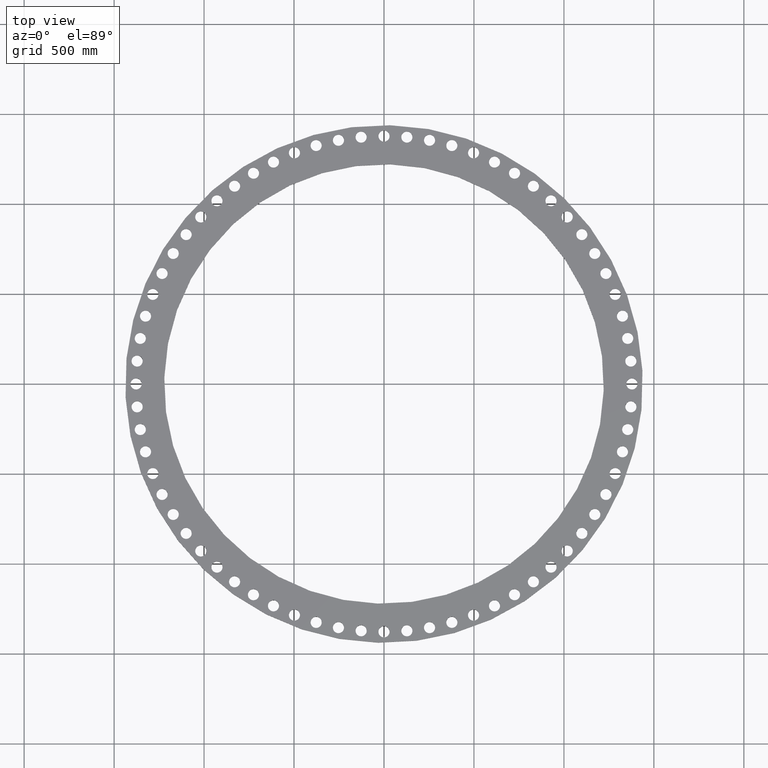
[diagram: clean part render]
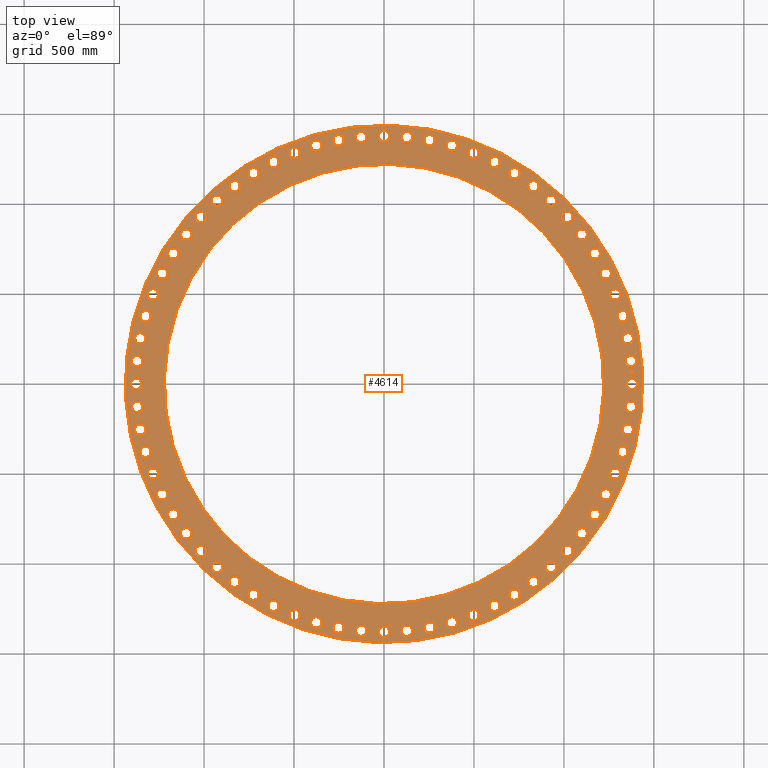
[diagram: same view with one face highlighted and labeled with its STEP entity id]
A machine part, top view. The second image highlights one B-rep face of the part: STEP entity #4614.
In plain terms, the highlighted planar face has unit normal (0, 0, 1).
Its self-contained STEP definition (entity closure, byte-faithful):
#65=AXIS2_PLACEMENT_3D('Circle Axis2P3D',#63,#64,$) ;
#82=AXIS2_PLACEMENT_3D('Circle Axis2P3D',#80,#81,$) ;
#108=AXIS2_PLACEMENT_3D('Circle Axis2P3D',#106,#107,$) ;
#134=AXIS2_PLACEMENT_3D('Circle Axis2P3D',#132,#133,$) ;
#179=AXIS2_PLACEMENT_3D('Circle Axis2P3D',#177,#178,$) ;
#196=AXIS2_PLACEMENT_3D('Circle Axis2P3D',#194,#195,$) ;
#1451=AXIS2_PLACEMENT_3D('Circle Axis2P3D',#1449,#1450,$) ;
#1463=AXIS2_PLACEMENT_3D('Circle Axis2P3D',#1461,#1462,$) ;
#1494=AXIS2_PLACEMENT_3D('Circle Axis2P3D',#1492,#1493,$) ;
#1506=AXIS2_PLACEMENT_3D('Circle Axis2P3D',#1504,#1505,$) ;
#1537=AXIS2_PLACEMENT_3D('Circle Axis2P3D',#1535,#1536,$) ;
#1549=AXIS2_PLACEMENT_3D('Circle Axis2P3D',#1547,#1548,$) ;
#1580=AXIS2_PLACEMENT_3D('Circle Axis2P3D',#1578,#1579,$) ;
#1592=AXIS2_PLACEMENT_3D('Circle Axis2P3D',#1590,#1591,$) ;
#1623=AXIS2_PLACEMENT_3D('Circle Axis2P3D',#1621,#1622,$) ;
#1635=AXIS2_PLACEMENT_3D('Circle Axis2P3D',#1633,#1634,$) ;
#1666=AXIS2_PLACEMENT_3D('Circle Axis2P3D',#1664,#1665,$) ;
#1678=AXIS2_PLACEMENT_3D('Circle Axis2P3D',#1676,#1677,$) ;
#1709=AXIS2_PLACEMENT_3D('Circle Axis2P3D',#1707,#1708,$) ;
#1721=AXIS2_PLACEMENT_3D('Circle Axis2P3D',#1719,#1720,$) ;
#1752=AXIS2_PLACEMENT_3D('Circle Axis2P3D',#1750,#1751,$) ;
#1764=AXIS2_PLACEMENT_3D('Circle Axis2P3D',#1762,#1763,$) ;
#1795=AXIS2_PLACEMENT_3D('Circle Axis2P3D',#1793,#1794,$) ;
#1807=AXIS2_PLACEMENT_3D('Circle Axis2P3D',#1805,#1806,$) ;
#1838=AXIS2_PLACEMENT_3D('Circle Axis2P3D',#1836,#1837,$) ;
#1850=AXIS2_PLACEMENT_3D('Circle Axis2P3D',#1848,#1849,$) ;
#1881=AXIS2_PLACEMENT_3D('Circle Axis2P3D',#1879,#1880,$) ;
#1893=AXIS2_PLACEMENT_3D('Circle Axis2P3D',#1891,#1892,$) ;
#1924=AXIS2_PLACEMENT_3D('Circle Axis2P3D',#1922,#1923,$) ;
#1936=AXIS2_PLACEMENT_3D('Circle Axis2P3D',#1934,#1935,$) ;
#1967=AXIS2_PLACEMENT_3D('Circle Axis2P3D',#1965,#1966,$) ;
#1979=AXIS2_PLACEMENT_3D('Circle Axis2P3D',#1977,#1978,$) ;
#2010=AXIS2_PLACEMENT_3D('Circle Axis2P3D',#2008,#2009,$) ;
#2022=AXIS2_PLACEMENT_3D('Circle Axis2P3D',#2020,#2021,$) ;
#2053=AXIS2_PLACEMENT_3D('Circle Axis2P3D',#2051,#2052,$) ;
#2065=AXIS2_PLACEMENT_3D('Circle Axis2P3D',#2063,#2064,$) ;
#2096=AXIS2_PLACEMENT_3D('Circle Axis2P3D',#2094,#2095,$) ;
#2108=AXIS2_PLACEMENT_3D('Circle Axis2P3D',#2106,#2107,$) ;
#2139=AXIS2_PLACEMENT_3D('Circle Axis2P3D',#2137,#2138,$) ;
#2151=AXIS2_PLACEMENT_3D('Circle Axis2P3D',#2149,#2150,$) ;
#2182=AXIS2_PLACEMENT_3D('Circle Axis2P3D',#2180,#2181,$) ;
#2194=AXIS2_PLACEMENT_3D('Circle Axis2P3D',#2192,#2193,$) ;
#2225=AXIS2_PLACEMENT_3D('Circle Axis2P3D',#2223,#2224,$) ;
#2237=AXIS2_PLACEMENT_3D('Circle Axis2P3D',#2235,#2236,$) ;
#2268=AXIS2_PLACEMENT_3D('Circle Axis2P3D',#2266,#2267,$) ;
#2280=AXIS2_PLACEMENT_3D('Circle Axis2P3D',#2278,#2279,$) ;
#2311=AXIS2_PLACEMENT_3D('Circle Axis2P3D',#2309,#2310,$) ;
#2323=AXIS2_PLACEMENT_3D('Circle Axis2P3D',#2321,#2322,$) ;
#2354=AXIS2_PLACEMENT_3D('Circle Axis2P3D',#2352,#2353,$) ;
#2366=AXIS2_PLACEMENT_3D('Circle Axis2P3D',#2364,#2365,$) ;
#2397=AXIS2_PLACEMENT_3D('Circle Axis2P3D',#2395,#2396,$) ;
#2409=AXIS2_PLACEMENT_3D('Circle Axis2P3D',#2407,#2408,$) ;
#2440=AXIS2_PLACEMENT_3D('Circle Axis2P3D',#2438,#2439,$) ;
#2452=AXIS2_PLACEMENT_3D('Circle Axis2P3D',#2450,#2451,$) ;
#2483=AXIS2_PLACEMENT_3D('Circle Axis2P3D',#2481,#2482,$) ;
#2495=AXIS2_PLACEMENT_3D('Circle Axis2P3D',#2493,#2494,$) ;
#2526=AXIS2_PLACEMENT_3D('Circle Axis2P3D',#2524,#2525,$) ;
#2538=AXIS2_PLACEMENT_3D('Circle Axis2P3D',#2536,#2537,$) ;
#2569=AXIS2_PLACEMENT_3D('Circle Axis2P3D',#2567,#2568,$) ;
#2581=AXIS2_PLACEMENT_3D('Circle Axis2P3D',#2579,#2580,$) ;
#2612=AXIS2_PLACEMENT_3D('Circle Axis2P3D',#2610,#2611,$) ;
#2624=AXIS2_PLACEMENT_3D('Circle Axis2P3D',#2622,#2623,$) ;
#2655=AXIS2_PLACEMENT_3D('Circle Axis2P3D',#2653,#2654,$) ;
#2667=AXIS2_PLACEMENT_3D('Circle Axis2P3D',#2665,#2666,$) ;
#2698=AXIS2_PLACEMENT_3D('Circle Axis2P3D',#2696,#2697,$) ;
#2710=AXIS2_PLACEMENT_3D('Circle Axis2P3D',#2708,#2709,$) ;
#2741=AXIS2_PLACEMENT_3D('Circle Axis2P3D',#2739,#2740,$) ;
#2753=AXIS2_PLACEMENT_3D('Circle Axis2P3D',#2751,#2752,$) ;
#2784=AXIS2_PLACEMENT_3D('Circle Axis2P3D',#2782,#2783,$) ;
#2796=AXIS2_PLACEMENT_3D('Circle Axis2P3D',#2794,#2795,$) ;
#2827=AXIS2_PLACEMENT_3D('Circle Axis2P3D',#2825,#2826,$) ;
#2839=AXIS2_PLACEMENT_3D('Circle Axis2P3D',#2837,#2838,$) ;
#2870=AXIS2_PLACEMENT_3D('Circle Axis2P3D',#2868,#2869,$) ;
#2882=AXIS2_PLACEMENT_3D('Circle Axis2P3D',#2880,#2881,$) ;
#2913=AXIS2_PLACEMENT_3D('Circle Axis2P3D',#2911,#2912,$) ;
#2925=AXIS2_PLACEMENT_3D('Circle Axis2P3D',#2923,#2924,$) ;
#2956=AXIS2_PLACEMENT_3D('Circle Axis2P3D',#2954,#2955,$) ;
#2968=AXIS2_PLACEMENT_3D('Circle Axis2P3D',#2966,#2967,$) ;
#2999=AXIS2_PLACEMENT_3D('Circle Axis2P3D',#2997,#2998,$) ;
#3011=AXIS2_PLACEMENT_3D('Circle Axis2P3D',#3009,#3010,$) ;
#3042=AXIS2_PLACEMENT_3D('Circle Axis2P3D',#3040,#3041,$) ;
#3054=AXIS2_PLACEMENT_3D('Circle Axis2P3D',#3052,#3053,$) ;
#3085=AXIS2_PLACEMENT_3D('Circle Axis2P3D',#3083,#3084,$) ;
#3097=AXIS2_PLACEMENT_3D('Circle Axis2P3D',#3095,#3096,$) ;
#3128=AXIS2_PLACEMENT_3D('Circle Axis2P3D',#3126,#3127,$) ;
#3140=AXIS2_PLACEMENT_3D('Circle Axis2P3D',#3138,#3139,$) ;
#3171=AXIS2_PLACEMENT_3D('Circle Axis2P3D',#3169,#3170,$) ;
#3183=AXIS2_PLACEMENT_3D('Circle Axis2P3D',#3181,#3182,$) ;
#3214=AXIS2_PLACEMENT_3D('Circle Axis2P3D',#3212,#3213,$) ;
#3226=AXIS2_PLACEMENT_3D('Circle Axis2P3D',#3224,#3225,$) ;
#3257=AXIS2_PLACEMENT_3D('Circle Axis2P3D',#3255,#3256,$) ;
#3269=AXIS2_PLACEMENT_3D('Circle Axis2P3D',#3267,#3268,$) ;
#3300=AXIS2_PLACEMENT_3D('Circle Axis2P3D',#3298,#3299,$) ;
#3312=AXIS2_PLACEMENT_3D('Circle Axis2P3D',#3310,#3311,$) ;
#3343=AXIS2_PLACEMENT_3D('Circle Axis2P3D',#3341,#3342,$) ;
#3355=AXIS2_PLACEMENT_3D('Circle Axis2P3D',#3353,#3354,$) ;
#3386=AXIS2_PLACEMENT_3D('Circle Axis2P3D',#3384,#3385,$) ;
#3398=AXIS2_PLACEMENT_3D('Circle Axis2P3D',#3396,#3397,$) ;
#3429=AXIS2_PLACEMENT_3D('Circle Axis2P3D',#3427,#3428,$) ;
#3441=AXIS2_PLACEMENT_3D('Circle Axis2P3D',#3439,#3440,$) ;
#3472=AXIS2_PLACEMENT_3D('Circle Axis2P3D',#3470,#3471,$) ;
#3484=AXIS2_PLACEMENT_3D('Circle Axis2P3D',#3482,#3483,$) ;
#3515=AXIS2_PLACEMENT_3D('Circle Axis2P3D',#3513,#3514,$) ;
#3527=AXIS2_PLACEMENT_3D('Circle Axis2P3D',#3525,#3526,$) ;
#3558=AXIS2_PLACEMENT_3D('Circle Axis2P3D',#3556,#3557,$) ;
#3570=AXIS2_PLACEMENT_3D('Circle Axis2P3D',#3568,#3569,$) ;
#3601=AXIS2_PLACEMENT_3D('Circle Axis2P3D',#3599,#3600,$) ;
#3613=AXIS2_PLACEMENT_3D('Circle Axis2P3D',#3611,#3612,$) ;
#3644=AXIS2_PLACEMENT_3D('Circle Axis2P3D',#3642,#3643,$) ;
#3656=AXIS2_PLACEMENT_3D('Circle Axis2P3D',#3654,#3655,$) ;
#3687=AXIS2_PLACEMENT_3D('Circle Axis2P3D',#3685,#3686,$) ;
#3699=AXIS2_PLACEMENT_3D('Circle Axis2P3D',#3697,#3698,$) ;
#3730=AXIS2_PLACEMENT_3D('Circle Axis2P3D',#3728,#3729,$) ;
#3742=AXIS2_PLACEMENT_3D('Circle Axis2P3D',#3740,#3741,$) ;
#3773=AXIS2_PLACEMENT_3D('Circle Axis2P3D',#3771,#3772,$) ;
#3785=AXIS2_PLACEMENT_3D('Circle Axis2P3D',#3783,#3784,$) ;
#3816=AXIS2_PLACEMENT_3D('Circle Axis2P3D',#3814,#3815,$) ;
#3828=AXIS2_PLACEMENT_3D('Circle Axis2P3D',#3826,#3827,$) ;
#3859=AXIS2_PLACEMENT_3D('Circle Axis2P3D',#3857,#3858,$) ;
#3871=AXIS2_PLACEMENT_3D('Circle Axis2P3D',#3869,#3870,$) ;
#3902=AXIS2_PLACEMENT_3D('Circle Axis2P3D',#3900,#3901,$) ;
#3914=AXIS2_PLACEMENT_3D('Circle Axis2P3D',#3912,#3913,$) ;
#3945=AXIS2_PLACEMENT_3D('Circle Axis2P3D',#3943,#3944,$) ;
#3957=AXIS2_PLACEMENT_3D('Circle Axis2P3D',#3955,#3956,$) ;
#3988=AXIS2_PLACEMENT_3D('Circle Axis2P3D',#3986,#3987,$) ;
#4000=AXIS2_PLACEMENT_3D('Circle Axis2P3D',#3998,#3999,$) ;
#4031=AXIS2_PLACEMENT_3D('Circle Axis2P3D',#4029,#4030,$) ;
#4043=AXIS2_PLACEMENT_3D('Circle Axis2P3D',#4041,#4042,$) ;
#4074=AXIS2_PLACEMENT_3D('Circle Axis2P3D',#4072,#4073,$) ;
#4086=AXIS2_PLACEMENT_3D('Circle Axis2P3D',#4084,#4085,$) ;
#4117=AXIS2_PLACEMENT_3D('Circle Axis2P3D',#4115,#4116,$) ;
#4129=AXIS2_PLACEMENT_3D('Circle Axis2P3D',#4127,#4128,$) ;
#4160=AXIS2_PLACEMENT_3D('Circle Axis2P3D',#4158,#4159,$) ;
#4172=AXIS2_PLACEMENT_3D('Circle Axis2P3D',#4170,#4171,$) ;
#4203=AXIS2_PLACEMENT_3D('Circle Axis2P3D',#4201,#4202,$) ;
#4215=AXIS2_PLACEMENT_3D('Circle Axis2P3D',#4213,#4214,$) ;
#4246=AXIS2_PLACEMENT_3D('Circle Axis2P3D',#4244,#4245,$) ;
#4258=AXIS2_PLACEMENT_3D('Circle Axis2P3D',#4256,#4257,$) ;
#4289=AXIS2_PLACEMENT_3D('Circle Axis2P3D',#4287,#4288,$) ;
#4301=AXIS2_PLACEMENT_3D('Circle Axis2P3D',#4299,#4300,$) ;
#4314=AXIS2_PLACEMENT_3D('Plane Axis2P3D',#4311,#4312,#4313) ;
#4598=AXIS2_PLACEMENT_3D('Circle Axis2P3D',#4596,#4597,$) ;
#4607=AXIS2_PLACEMENT_3D('Circle Axis2P3D',#4605,#4606,$) ;
#46=CARTESIAN_POINT('Vertex',(53.1802268573,0.584419731561,2.25000000001)) ;
#60=CARTESIAN_POINT('Vertex',(55.3197731432,-0.584419731561,2.25000000001)) ;
#63=CARTESIAN_POINT('Axis2P3D Location',(54.2500000002,0.,2.25000000001)) ;
#80=CARTESIAN_POINT('Axis2P3D Location',(54.2500000002,0.,2.25000000001)) ;
#103=CARTESIAN_POINT('Vertex',(49.6931125672,27.1474711236,2.25000000001)) ;
#106=CARTESIAN_POINT('Axis2P3D Location',(0.,0.,2.25000000001)) ;
#110=CARTESIAN_POINT('Vertex',(-49.6931125672,-27.1474711236,2.25000000001)) ;
#132=CARTESIAN_POINT('Axis2P3D Location',(0.,0.,2.25000000001)) ;
#160=CARTESIAN_POINT('Vertex',(-42.2073333143,23.0579712793,2.25000000001)) ;
#174=CARTESIAN_POINT('Vertex',(42.2073333143,-23.0579712793,2.25000000001)) ;
#177=CARTESIAN_POINT('Axis2P3D Location',(-6.64385432059E-016,-2.09805925913E-016,2.25000000001)) ;
#194=CARTESIAN_POINT('Axis2P3D Location',(-6.64385432059E-016,-2.09805925913E-016,2.25000000001)) ;
#1439=CARTESIAN_POINT('Vertex',(52.899445935,5.48877898802,2.25000000001)) ;
#1446=CARTESIAN_POINT('Vertex',(55.1377121934,4.52233801379,2.25000000001)) ;
#1449=CARTESIAN_POINT('Axis2P3D Location',(54.0185790642,5.0055585009,2.25000000001)) ;
#1461=CARTESIAN_POINT('Axis2P3D Location',(54.0185790642,5.0055585009,2.25000000001)) ;
#1482=CARTESIAN_POINT('Vertex',(52.1673455919,10.3463099174,2.25000000001)) ;
#1489=CARTESIAN_POINT('Vertex',(54.4852357242,9.59051276573,2.25000000001)) ;
#1492=CARTESIAN_POINT('Axis2P3D Location',(53.3262906581,9.96841134159,2.25000000001)) ;
#1504=CARTESIAN_POINT('Axis2P3D Location',(53.3262906581,9.96841134159,2.25000000001)) ;
#1525=CARTESIAN_POINT('Vertex',(50.9901718499,15.1155697787,2.25000000001)) ;
#1532=CARTESIAN_POINT('Vertex',(53.3679104348,14.5768646443,2.25000000001)) ;
#1535=CARTESIAN_POINT('Axis2P3D Location',(52.1790411423,14.8462172115,2.25000000001)) ;
#1547=CARTESIAN_POINT('Axis2P3D Location',(52.1790411423,14.8462172115,2.25000000001)) ;
#1568=CARTESIAN_POINT('Vertex',(49.3779679402,19.7558689281,2.25000000001)) ;
#1575=CARTESIAN_POINT('Vertex',(51.7952689505,19.4388518533,2.25000000001)) ;
#1578=CARTESIAN_POINT('Axis2P3D Location',(50.5866184454,19.5973603907,2.25000000001)) ;
#1590=CARTESIAN_POINT('Axis2P3D Location',(50.5866184454,19.5973603907,2.25000000001)) ;
#1611=CARTESIAN_POINT('Vertex',(47.3444886183,24.2276179696,2.25000000001)) ;
#1618=CARTESIAN_POINT('Vertex',(49.7807284941,24.1349936323,2.25000000001)) ;
#1621=CARTESIAN_POINT('Axis2P3D Location',(48.5626085562,24.181305801,2.25000000001)) ;
#1633=CARTESIAN_POINT('Axis2P3D Location',(48.5626085562,24.181305801,2.25000000001)) ;
#1654=CARTESIAN_POINT('Vertex',(44.9070828127,28.492665517,2.25000000001)) ;
#1661=CARTESIAN_POINT('Vertex',(47.3414764143,28.6252241554,2.25000000001)) ;
#1664=CARTESIAN_POINT('Axis2P3D Location',(46.1242796135,28.5589448362,2.25000000001)) ;
#1676=CARTESIAN_POINT('Axis2P3D Location',(46.1242796135,28.5589448362,2.25000000001)) ;
#1697=CARTESIAN_POINT('Vertex',(42.0865456103,32.5146236884,2.25000000001)) ;
#1704=CARTESIAN_POINT('Vertex',(44.4983235499,32.871234359,2.25000000001)) ;
#1707=CARTESIAN_POINT('Axis2P3D Location',(43.2924345801,32.6929290237,2.25000000001)) ;
#1719=CARTESIAN_POINT('Axis2P3D Location',(43.2924345801,32.6929290237,2.25000000001)) ;
#1740=CARTESIAN_POINT('Vertex',(38.9069408401,36.2591785549,2.25000000001)) ;
#1747=CARTESIAN_POINT('Vertex',(41.2755266786,36.836798781,2.25000000001)) ;
#1750=CARTESIAN_POINT('Axis2P3D Location',(40.0912337594,36.547988668,2.25000000001)) ;
#1762=CARTESIAN_POINT('Axis2P3D Location',(40.0912337594,36.547988668,2.25000000001)) ;
#1783=CARTESIAN_POINT('Vertex',(35.3953957689,39.6943828946,2.25000000001)) ;
#1790=CARTESIAN_POINT('Vertex',(37.7005815671,40.4880846242,2.25000000001)) ;
#1793=CARTESIAN_POINT('Axis2P3D Location',(36.547988668,40.0912337594,2.25000000001)) ;
#1805=CARTESIAN_POINT('Axis2P3D Location',(36.547988668,40.0912337594,2.25000000001)) ;
#1826=CARTESIAN_POINT('Vertex',(31.5818696609,42.7909287552,2.25000000001)) ;
#1833=CARTESIAN_POINT('Vertex',(33.8039883865,43.7939404051,2.25000000001)) ;
#1836=CARTESIAN_POINT('Axis2P3D Location',(32.6929290237,43.2924345801,2.25000000001)) ;
#1848=CARTESIAN_POINT('Axis2P3D Location',(32.6929290237,43.2924345801,2.25000000001)) ;
#1869=CARTESIAN_POINT('Vertex',(27.4988981765,45.5223974994,2.25000000001)) ;
#1876=CARTESIAN_POINT('Vertex',(29.6189914959,46.7261617277,2.25000000001)) ;
#1879=CARTESIAN_POINT('Axis2P3D Location',(28.5589448362,46.1242796135,2.25000000001)) ;
#1891=CARTESIAN_POINT('Axis2P3D Location',(28.5589448362,46.1242796135,2.25000000001)) ;
#1912=CARTESIAN_POINT('Vertex',(23.1813157887,47.8654851988,2.25000000001)) ;
#1919=CARTESIAN_POINT('Vertex',(25.1812958132,49.2597319136,2.25000000001)) ;
#1922=CARTESIAN_POINT('Axis2P3D Location',(24.181305801,48.5626085562,2.25000000001)) ;
#1934=CARTESIAN_POINT('Axis2P3D Location',(24.181305801,48.5626085562,2.25000000001)) ;
#1955=CARTESIAN_POINT('Vertex',(18.6659585881,49.8002014554,2.25000000001)) ;
#1962=CARTESIAN_POINT('Vertex',(20.5287621933,51.3730354354,2.25000000001)) ;
#1965=CARTESIAN_POINT('Axis2P3D Location',(19.5973603907,50.5866184454,2.25000000001)) ;
#1977=CARTESIAN_POINT('Axis2P3D Location',(19.5973603907,50.5866184454,2.25000000001)) ;
#1998=CARTESIAN_POINT('Vertex',(13.9913500103,51.3100399523,2.25000000001)) ;
#2005=CARTESIAN_POINT('Vertex',(15.7010844127,53.0480423324,2.25000000001)) ;
#2008=CARTESIAN_POINT('Axis2P3D Location',(14.8462172115,52.1790411423,2.25000000001)) ;
#2020=CARTESIAN_POINT('Axis2P3D Location',(14.8462172115,52.1790411423,2.25000000001)) ;
#2041=CARTESIAN_POINT('Vertex',(9.19737216735,52.3821192797,2.25000000001)) ;
#2048=CARTESIAN_POINT('Vertex',(10.7394505158,54.2704620365,2.25000000001)) ;
#2051=CARTESIAN_POINT('Axis2P3D Location',(9.96841134159,53.3262906581,2.25000000001)) ;
#2063=CARTESIAN_POINT('Axis2P3D Location',(9.96841134159,53.3262906581,2.25000000001)) ;
#2084=CARTESIAN_POINT('Vertex',(4.32492558799,53.0072928348,2.25000000001)) ;
#2091=CARTESIAN_POINT('Vertex',(5.68619141382,55.0298652937,2.25000000001)) ;
#2094=CARTESIAN_POINT('Axis2P3D Location',(5.0055585009,54.0185790642,2.25000000001)) ;
#2106=CARTESIAN_POINT('Axis2P3D Location',(5.0055585009,54.0185790642,2.25000000001)) ;
#2127=CARTESIAN_POINT('Vertex',(-0.584419731561,53.1802268573,2.25000000001)) ;
#2134=CARTESIAN_POINT('Vertex',(0.584419731561,55.3197731432,2.25000000001)) ;
#2137=CARTESIAN_POINT('Axis2P3D Location',(-5.62986506294E-015,54.2500000002,2.25000000001)) ;
#2149=CARTESIAN_POINT('Axis2P3D Location',(-5.62986506294E-015,54.2500000002,2.25000000001)) ;
#2170=CARTESIAN_POINT('Vertex',(-5.48877898802,52.899445935,2.25000000001)) ;
#2177=CARTESIAN_POINT('Vertex',(-4.52233801379,55.1377121934,2.25000000001)) ;
#2180=CARTESIAN_POINT('Axis2P3D Location',(-5.0055585009,54.0185790642,2.25000000001)) ;
#2192=CARTESIAN_POINT('Axis2P3D Location',(-5.0055585009,54.0185790642,2.25000000001)) ;
#2213=CARTESIAN_POINT('Vertex',(-10.3463099174,52.1673455919,2.25000000001)) ;
#2220=CARTESIAN_POINT('Vertex',(-9.59051276573,54.4852357242,2.25000000001)) ;
#2223=CARTESIAN_POINT('Axis2P3D Location',(-9.96841134159,53.3262906581,2.25000000001)) ;
#2235=CARTESIAN_POINT('Axis2P3D Location',(-9.96841134159,53.3262906581,2.25000000001)) ;
#2256=CARTESIAN_POINT('Vertex',(-15.1155697787,50.9901718499,2.25000000001)) ;
#2263=CARTESIAN_POINT('Vertex',(-14.5768646443,53.3679104348,2.25000000001)) ;
#2266=CARTESIAN_POINT('Axis2P3D Location',(-14.8462172115,52.1790411423,2.25000000001)) ;
#2278=CARTESIAN_POINT('Axis2P3D Location',(-14.8462172115,52.1790411423,2.25000000001)) ;
#2299=CARTESIAN_POINT('Vertex',(-19.7558689281,49.3779679402,2.25000000001)) ;
#2306=CARTESIAN_POINT('Vertex',(-19.4388518533,51.7952689505,2.25000000001)) ;
#2309=CARTESIAN_POINT('Axis2P3D Location',(-19.5973603907,50.5866184454,2.25000000001)) ;
#2321=CARTESIAN_POINT('Axis2P3D Location',(-19.5973603907,50.5866184454,2.25000000001)) ;
#2342=CARTESIAN_POINT('Vertex',(-24.2276179696,47.3444886183,2.25000000001)) ;
#2349=CARTESIAN_POINT('Vertex',(-24.1349936323,49.7807284941,2.25000000001)) ;
#2352=CARTESIAN_POINT('Axis2P3D Location',(-24.181305801,48.5626085562,2.25000000001)) ;
#2364=CARTESIAN_POINT('Axis2P3D Location',(-24.181305801,48.5626085562,2.25000000001)) ;
#2385=CARTESIAN_POINT('Vertex',(-28.492665517,44.9070828127,2.25000000001)) ;
#2392=CARTESIAN_POINT('Vertex',(-28.6252241554,47.3414764143,2.25000000001)) ;
#2395=CARTESIAN_POINT('Axis2P3D Location',(-28.5589448362,46.1242796135,2.25000000001)) ;
#2407=CARTESIAN_POINT('Axis2P3D Location',(-28.5589448362,46.1242796135,2.25000000001)) ;
#2428=CARTESIAN_POINT('Vertex',(-32.5146236884,42.0865456103,2.25000000001)) ;
#2435=CARTESIAN_POINT('Vertex',(-32.871234359,44.4983235499,2.25000000001)) ;
#2438=CARTESIAN_POINT('Axis2P3D Location',(-32.6929290237,43.2924345801,2.25000000001)) ;
#2450=CARTESIAN_POINT('Axis2P3D Location',(-32.6929290237,43.2924345801,2.25000000001)) ;
#2471=CARTESIAN_POINT('Vertex',(-36.2591785549,38.9069408401,2.25000000001)) ;
#2478=CARTESIAN_POINT('Vertex',(-36.836798781,41.2755266786,2.25000000001)) ;
#2481=CARTESIAN_POINT('Axis2P3D Location',(-36.547988668,40.0912337594,2.25000000001)) ;
#2493=CARTESIAN_POINT('Axis2P3D Location',(-36.547988668,40.0912337594,2.25000000001)) ;
#2514=CARTESIAN_POINT('Vertex',(-39.6943828946,35.3953957689,2.25000000001)) ;
#2521=CARTESIAN_POINT('Vertex',(-40.4880846242,37.7005815671,2.25000000001)) ;
#2524=CARTESIAN_POINT('Axis2P3D Location',(-40.0912337594,36.547988668,2.25000000001)) ;
#2536=CARTESIAN_POINT('Axis2P3D Location',(-40.0912337594,36.547988668,2.25000000001)) ;
#2557=CARTESIAN_POINT('Vertex',(-42.7909287552,31.5818696609,2.25000000001)) ;
#2564=CARTESIAN_POINT('Vertex',(-43.7939404051,33.8039883865,2.25000000001)) ;
#2567=CARTESIAN_POINT('Axis2P3D Location',(-43.2924345801,32.6929290237,2.25000000001)) ;
#2579=CARTESIAN_POINT('Axis2P3D Location',(-43.2924345801,32.6929290237,2.25000000001)) ;
#2600=CARTESIAN_POINT('Vertex',(-45.5223974994,27.4988981765,2.25000000001)) ;
#2607=CARTESIAN_POINT('Vertex',(-46.7261617277,29.6189914959,2.25000000001)) ;
#2610=CARTESIAN_POINT('Axis2P3D Location',(-46.1242796135,28.5589448362,2.25000000001)) ;
#2622=CARTESIAN_POINT('Axis2P3D Location',(-46.1242796135,28.5589448362,2.25000000001)) ;
#2643=CARTESIAN_POINT('Vertex',(-47.8654851988,23.1813157887,2.25000000001)) ;
#2650=CARTESIAN_POINT('Vertex',(-49.2597319136,25.1812958132,2.25000000001)) ;
#2653=CARTESIAN_POINT('Axis2P3D Location',(-48.5626085562,24.181305801,2.25000000001)) ;
#2665=CARTESIAN_POINT('Axis2P3D Location',(-48.5626085562,24.181305801,2.25000000001)) ;
#2686=CARTESIAN_POINT('Vertex',(-49.8002014554,18.6659585881,2.25000000001)) ;
#2693=CARTESIAN_POINT('Vertex',(-51.3730354354,20.5287621933,2.25000000001)) ;
#2696=CARTESIAN_POINT('Axis2P3D Location',(-50.5866184454,19.5973603907,2.25000000001)) ;
#2708=CARTESIAN_POINT('Axis2P3D Location',(-50.5866184454,19.5973603907,2.25000000001)) ;
#2729=CARTESIAN_POINT('Vertex',(-51.3100399523,13.9913500103,2.25000000001)) ;
#2736=CARTESIAN_POINT('Vertex',(-53.0480423324,15.7010844127,2.25000000001)) ;
#2739=CARTESIAN_POINT('Axis2P3D Location',(-52.1790411423,14.8462172115,2.25000000001)) ;
#2751=CARTESIAN_POINT('Axis2P3D Location',(-52.1790411423,14.8462172115,2.25000000001)) ;
#2772=CARTESIAN_POINT('Vertex',(-52.3821192797,9.19737216735,2.25000000001)) ;
#2779=CARTESIAN_POINT('Vertex',(-54.2704620365,10.7394505158,2.25000000001)) ;
#2782=CARTESIAN_POINT('Axis2P3D Location',(-53.3262906581,9.96841134159,2.25000000001)) ;
#2794=CARTESIAN_POINT('Axis2P3D Location',(-53.3262906581,9.96841134159,2.25000000001)) ;
#2815=CARTESIAN_POINT('Vertex',(-53.0072928348,4.32492558799,2.25000000001)) ;
#2822=CARTESIAN_POINT('Vertex',(-55.0298652937,5.68619141382,2.25000000001)) ;
#2825=CARTESIAN_POINT('Axis2P3D Location',(-54.0185790642,5.0055585009,2.25000000001)) ;
#2837=CARTESIAN_POINT('Axis2P3D Location',(-54.0185790642,5.0055585009,2.25000000001)) ;
#2858=CARTESIAN_POINT('Vertex',(-53.1802268573,-0.584419731561,2.25000000001)) ;
#2865=CARTESIAN_POINT('Vertex',(-55.3197731432,0.584419731561,2.25000000001)) ;
#2868=CARTESIAN_POINT('Axis2P3D Location',(-54.2500000002,6.6437088854E-015,2.25000000001)) ;
#2880=CARTESIAN_POINT('Axis2P3D Location',(-54.2500000002,6.6437088854E-015,2.25000000001)) ;
#2901=CARTESIAN_POINT('Vertex',(-52.899445935,-5.48877898802,2.25000000001)) ;
#2908=CARTESIAN_POINT('Vertex',(-55.1377121934,-4.52233801379,2.25000000001)) ;
#2911=CARTESIAN_POINT('Axis2P3D Location',(-54.0185790642,-5.0055585009,2.25000000001)) ;
#2923=CARTESIAN_POINT('Axis2P3D Location',(-54.0185790642,-5.0055585009,2.25000000001)) ;
#2944=CARTESIAN_POINT('Vertex',(-52.1673455919,-10.3463099174,2.25000000001)) ;
#2951=CARTESIAN_POINT('Vertex',(-54.4852357242,-9.59051276573,2.25000000001)) ;
#2954=CARTESIAN_POINT('Axis2P3D Location',(-53.3262906581,-9.96841134159,2.25000000001)) ;
#2966=CARTESIAN_POINT('Axis2P3D Location',(-53.3262906581,-9.96841134159,2.25000000001)) ;
#2987=CARTESIAN_POINT('Vertex',(-50.9901718499,-15.1155697787,2.25000000001)) ;
#2994=CARTESIAN_POINT('Vertex',(-53.3679104348,-14.5768646443,2.25000000001)) ;
#2997=CARTESIAN_POINT('Axis2P3D Location',(-52.1790411423,-14.8462172115,2.25000000001)) ;
#3009=CARTESIAN_POINT('Axis2P3D Location',(-52.1790411423,-14.8462172115,2.25000000001)) ;
#3030=CARTESIAN_POINT('Vertex',(-49.3779679402,-19.7558689281,2.25000000001)) ;
#3037=CARTESIAN_POINT('Vertex',(-51.7952689505,-19.4388518533,2.25000000001)) ;
#3040=CARTESIAN_POINT('Axis2P3D Location',(-50.5866184454,-19.5973603907,2.25000000001)) ;
#3052=CARTESIAN_POINT('Axis2P3D Location',(-50.5866184454,-19.5973603907,2.25000000001)) ;
#3073=CARTESIAN_POINT('Vertex',(-47.3444886183,-24.2276179696,2.25000000001)) ;
#3080=CARTESIAN_POINT('Vertex',(-49.7807284941,-24.1349936323,2.25000000001)) ;
#3083=CARTESIAN_POINT('Axis2P3D Location',(-48.5626085562,-24.181305801,2.25000000001)) ;
#3095=CARTESIAN_POINT('Axis2P3D Location',(-48.5626085562,-24.181305801,2.25000000001)) ;
#3116=CARTESIAN_POINT('Vertex',(-44.9070828127,-28.492665517,2.25000000001)) ;
#3123=CARTESIAN_POINT('Vertex',(-47.3414764143,-28.6252241554,2.25000000001)) ;
#3126=CARTESIAN_POINT('Axis2P3D Location',(-46.1242796135,-28.5589448362,2.25000000001)) ;
#3138=CARTESIAN_POINT('Axis2P3D Location',(-46.1242796135,-28.5589448362,2.25000000001)) ;
#3159=CARTESIAN_POINT('Vertex',(-42.0865456103,-32.5146236884,2.25000000001)) ;
#3166=CARTESIAN_POINT('Vertex',(-44.4983235499,-32.871234359,2.25000000001)) ;
#3169=CARTESIAN_POINT('Axis2P3D Location',(-43.2924345801,-32.6929290237,2.25000000001)) ;
#3181=CARTESIAN_POINT('Axis2P3D Location',(-43.2924345801,-32.6929290237,2.25000000001)) ;
#3202=CARTESIAN_POINT('Vertex',(-38.9069408401,-36.2591785549,2.25000000001)) ;
#3209=CARTESIAN_POINT('Vertex',(-41.2755266786,-36.836798781,2.25000000001)) ;
#3212=CARTESIAN_POINT('Axis2P3D Location',(-40.0912337594,-36.547988668,2.25000000001)) ;
#3224=CARTESIAN_POINT('Axis2P3D Location',(-40.0912337594,-36.547988668,2.25000000001)) ;
#3245=CARTESIAN_POINT('Vertex',(-35.3953957689,-39.6943828946,2.25000000001)) ;
#3252=CARTESIAN_POINT('Vertex',(-37.7005815671,-40.4880846242,2.25000000001)) ;
#3255=CARTESIAN_POINT('Axis2P3D Location',(-36.547988668,-40.0912337594,2.25000000001)) ;
#3267=CARTESIAN_POINT('Axis2P3D Location',(-36.547988668,-40.0912337594,2.25000000001)) ;
#3288=CARTESIAN_POINT('Vertex',(-31.5818696609,-42.7909287552,2.25000000001)) ;
#3295=CARTESIAN_POINT('Vertex',(-33.8039883865,-43.7939404051,2.25000000001)) ;
#3298=CARTESIAN_POINT('Axis2P3D Location',(-32.6929290237,-43.2924345801,2.25000000001)) ;
#3310=CARTESIAN_POINT('Axis2P3D Location',(-32.6929290237,-43.2924345801,2.25000000001)) ;
#3331=CARTESIAN_POINT('Vertex',(-27.4988981765,-45.5223974994,2.25000000001)) ;
#3338=CARTESIAN_POINT('Vertex',(-29.6189914959,-46.7261617277,2.25000000001)) ;
#3341=CARTESIAN_POINT('Axis2P3D Location',(-28.5589448362,-46.1242796135,2.25000000001)) ;
#3353=CARTESIAN_POINT('Axis2P3D Location',(-28.5589448362,-46.1242796135,2.25000000001)) ;
#3374=CARTESIAN_POINT('Vertex',(-23.1813157887,-47.8654851988,2.25000000001)) ;
#3381=CARTESIAN_POINT('Vertex',(-25.1812958132,-49.2597319136,2.25000000001)) ;
#3384=CARTESIAN_POINT('Axis2P3D Location',(-24.181305801,-48.5626085562,2.25000000001)) ;
#3396=CARTESIAN_POINT('Axis2P3D Location',(-24.181305801,-48.5626085562,2.25000000001)) ;
#3417=CARTESIAN_POINT('Vertex',(-18.6659585881,-49.8002014554,2.25000000001)) ;
#3424=CARTESIAN_POINT('Vertex',(-20.5287621933,-51.3730354354,2.25000000001)) ;
#3427=CARTESIAN_POINT('Axis2P3D Location',(-19.5973603907,-50.5866184454,2.25000000001)) ;
#3439=CARTESIAN_POINT('Axis2P3D Location',(-19.5973603907,-50.5866184454,2.25000000001)) ;
#3460=CARTESIAN_POINT('Vertex',(-13.9913500103,-51.3100399523,2.25000000001)) ;
#3467=CARTESIAN_POINT('Vertex',(-15.7010844127,-53.0480423324,2.25000000001)) ;
#3470=CARTESIAN_POINT('Axis2P3D Location',(-14.8462172115,-52.1790411423,2.25000000001)) ;
#3482=CARTESIAN_POINT('Axis2P3D Location',(-14.8462172115,-52.1790411423,2.25000000001)) ;
#3503=CARTESIAN_POINT('Vertex',(-9.19737216735,-52.3821192797,2.25000000001)) ;
#3510=CARTESIAN_POINT('Vertex',(-10.7394505158,-54.2704620365,2.25000000001)) ;
#3513=CARTESIAN_POINT('Axis2P3D Location',(-9.96841134159,-53.3262906581,2.25000000001)) ;
#3525=CARTESIAN_POINT('Axis2P3D Location',(-9.96841134159,-53.3262906581,2.25000000001)) ;
#3546=CARTESIAN_POINT('Vertex',(-4.32492558799,-53.0072928348,2.25000000001)) ;
#3553=CARTESIAN_POINT('Vertex',(-5.68619141382,-55.0298652937,2.25000000001)) ;
#3556=CARTESIAN_POINT('Axis2P3D Location',(-5.0055585009,-54.0185790642,2.25000000001)) ;
#3568=CARTESIAN_POINT('Axis2P3D Location',(-5.0055585009,-54.0185790642,2.25000000001)) ;
#3589=CARTESIAN_POINT('Vertex',(0.584419731561,-53.1802268573,2.25000000001)) ;
#3596=CARTESIAN_POINT('Vertex',(-0.584419731561,-55.3197731432,2.25000000001)) ;
#3599=CARTESIAN_POINT('Axis2P3D Location',(-9.9655633281E-015,-54.2500000002,2.25000000001)) ;
#3611=CARTESIAN_POINT('Axis2P3D Location',(-9.9655633281E-015,-54.2500000002,2.25000000001)) ;
#3632=CARTESIAN_POINT('Vertex',(5.48877898802,-52.899445935,2.25000000001)) ;
#3639=CARTESIAN_POINT('Vertex',(4.52233801379,-55.1377121934,2.25000000001)) ;
#3642=CARTESIAN_POINT('Axis2P3D Location',(5.0055585009,-54.0185790642,2.25000000001)) ;
#3654=CARTESIAN_POINT('Axis2P3D Location',(5.0055585009,-54.0185790642,2.25000000001)) ;
#3675=CARTESIAN_POINT('Vertex',(10.3463099174,-52.1673455919,2.25000000001)) ;
#3682=CARTESIAN_POINT('Vertex',(9.59051276573,-54.4852357242,2.25000000001)) ;
#3685=CARTESIAN_POINT('Axis2P3D Location',(9.96841134159,-53.3262906581,2.25000000001)) ;
#3697=CARTESIAN_POINT('Axis2P3D Location',(9.96841134159,-53.3262906581,2.25000000001)) ;
#3718=CARTESIAN_POINT('Vertex',(15.1155697787,-50.9901718499,2.25000000001)) ;
#3725=CARTESIAN_POINT('Vertex',(14.5768646443,-53.3679104348,2.25000000001)) ;
#3728=CARTESIAN_POINT('Axis2P3D Location',(14.8462172115,-52.1790411423,2.25000000001)) ;
#3740=CARTESIAN_POINT('Axis2P3D Location',(14.8462172115,-52.1790411423,2.25000000001)) ;
#3761=CARTESIAN_POINT('Vertex',(19.7558689281,-49.3779679402,2.25000000001)) ;
#3768=CARTESIAN_POINT('Vertex',(19.4388518533,-51.7952689505,2.25000000001)) ;
#3771=CARTESIAN_POINT('Axis2P3D Location',(19.5973603907,-50.5866184454,2.25000000001)) ;
#3783=CARTESIAN_POINT('Axis2P3D Location',(19.5973603907,-50.5866184454,2.25000000001)) ;
#3804=CARTESIAN_POINT('Vertex',(24.2276179696,-47.3444886183,2.25000000001)) ;
#3811=CARTESIAN_POINT('Vertex',(24.1349936323,-49.7807284941,2.25000000001)) ;
#3814=CARTESIAN_POINT('Axis2P3D Location',(24.181305801,-48.5626085562,2.25000000001)) ;
#3826=CARTESIAN_POINT('Axis2P3D Location',(24.181305801,-48.5626085562,2.25000000001)) ;
#3847=CARTESIAN_POINT('Vertex',(28.492665517,-44.9070828127,2.25000000001)) ;
#3854=CARTESIAN_POINT('Vertex',(28.6252241554,-47.3414764143,2.25000000001)) ;
#3857=CARTESIAN_POINT('Axis2P3D Location',(28.5589448362,-46.1242796135,2.25000000001)) ;
#3869=CARTESIAN_POINT('Axis2P3D Location',(28.5589448362,-46.1242796135,2.25000000001)) ;
#3890=CARTESIAN_POINT('Vertex',(32.5146236884,-42.0865456103,2.25000000001)) ;
#3897=CARTESIAN_POINT('Vertex',(32.871234359,-44.4983235499,2.25000000001)) ;
#3900=CARTESIAN_POINT('Axis2P3D Location',(32.6929290237,-43.2924345801,2.25000000001)) ;
#3912=CARTESIAN_POINT('Axis2P3D Location',(32.6929290237,-43.2924345801,2.25000000001)) ;
#3933=CARTESIAN_POINT('Vertex',(36.2591785549,-38.9069408401,2.25000000001)) ;
#3940=CARTESIAN_POINT('Vertex',(36.836798781,-41.2755266786,2.25000000001)) ;
#3943=CARTESIAN_POINT('Axis2P3D Location',(36.547988668,-40.0912337594,2.25000000001)) ;
#3955=CARTESIAN_POINT('Axis2P3D Location',(36.547988668,-40.0912337594,2.25000000001)) ;
#3976=CARTESIAN_POINT('Vertex',(39.6943828946,-35.3953957689,2.25000000001)) ;
#3983=CARTESIAN_POINT('Vertex',(40.4880846242,-37.7005815671,2.25000000001)) ;
#3986=CARTESIAN_POINT('Axis2P3D Location',(40.0912337594,-36.547988668,2.25000000001)) ;
#3998=CARTESIAN_POINT('Axis2P3D Location',(40.0912337594,-36.547988668,2.25000000001)) ;
#4019=CARTESIAN_POINT('Vertex',(42.7909287552,-31.5818696609,2.25000000001)) ;
#4026=CARTESIAN_POINT('Vertex',(43.7939404051,-33.8039883865,2.25000000001)) ;
#4029=CARTESIAN_POINT('Axis2P3D Location',(43.2924345801,-32.6929290237,2.25000000001)) ;
#4041=CARTESIAN_POINT('Axis2P3D Location',(43.2924345801,-32.6929290237,2.25000000001)) ;
#4062=CARTESIAN_POINT('Vertex',(45.5223974994,-27.4988981765,2.25000000001)) ;
#4069=CARTESIAN_POINT('Vertex',(46.7261617277,-29.6189914959,2.25000000001)) ;
#4072=CARTESIAN_POINT('Axis2P3D Location',(46.1242796135,-28.5589448362,2.25000000001)) ;
#4084=CARTESIAN_POINT('Axis2P3D Location',(46.1242796135,-28.5589448362,2.25000000001)) ;
#4105=CARTESIAN_POINT('Vertex',(47.8654851988,-23.1813157887,2.25000000001)) ;
#4112=CARTESIAN_POINT('Vertex',(49.2597319136,-25.1812958132,2.25000000001)) ;
#4115=CARTESIAN_POINT('Axis2P3D Location',(48.5626085562,-24.181305801,2.25000000001)) ;
#4127=CARTESIAN_POINT('Axis2P3D Location',(48.5626085562,-24.181305801,2.25000000001)) ;
#4148=CARTESIAN_POINT('Vertex',(49.8002014554,-18.6659585881,2.25000000001)) ;
#4155=CARTESIAN_POINT('Vertex',(51.3730354354,-20.5287621933,2.25000000001)) ;
#4158=CARTESIAN_POINT('Axis2P3D Location',(50.5866184454,-19.5973603907,2.25000000001)) ;
#4170=CARTESIAN_POINT('Axis2P3D Location',(50.5866184454,-19.5973603907,2.25000000001)) ;
#4191=CARTESIAN_POINT('Vertex',(51.3100399523,-13.9913500103,2.25000000001)) ;
#4198=CARTESIAN_POINT('Vertex',(53.0480423324,-15.7010844127,2.25000000001)) ;
#4201=CARTESIAN_POINT('Axis2P3D Location',(52.1790411423,-14.8462172115,2.25000000001)) ;
#4213=CARTESIAN_POINT('Axis2P3D Location',(52.1790411423,-14.8462172115,2.25000000001)) ;
#4234=CARTESIAN_POINT('Vertex',(52.3821192797,-9.19737216735,2.25000000001)) ;
#4241=CARTESIAN_POINT('Vertex',(54.2704620365,-10.7394505158,2.25000000001)) ;
#4244=CARTESIAN_POINT('Axis2P3D Location',(53.3262906581,-9.96841134159,2.25000000001)) ;
#4256=CARTESIAN_POINT('Axis2P3D Location',(53.3262906581,-9.96841134159,2.25000000001)) ;
#4277=CARTESIAN_POINT('Vertex',(53.0072928348,-4.32492558799,2.25000000001)) ;
#4284=CARTESIAN_POINT('Vertex',(55.0298652937,-5.68619141382,2.25000000001)) ;
#4287=CARTESIAN_POINT('Axis2P3D Location',(54.0185790642,-5.0055585009,2.25000000001)) ;
#4299=CARTESIAN_POINT('Axis2P3D Location',(54.0185790642,-5.0055585009,2.25000000001)) ;
#4311=CARTESIAN_POINT('Axis2P3D Location',(56.6250000002,0.,2.25000000001)) ;
#4596=CARTESIAN_POINT('Axis2P3D Location',(54.1921138832,2.50545263154,2.25000000001)) ;
#4600=CARTESIAN_POINT('Vertex',(54.1690221542,3.00491911395,2.25000000001)) ;
#4602=CARTESIAN_POINT('Vertex',(54.2152056123,2.00598614913,2.25000000001)) ;
#4605=CARTESIAN_POINT('Axis2P3D Location',(54.1921138832,2.50545263154,2.25000000001)) ;
#64=DIRECTION('Axis2P3D Direction',(0.,-0.,-0.0393700787402)) ;
#81=DIRECTION('Axis2P3D Direction',(0.,-0.,-0.0393700787402)) ;
#107=DIRECTION('Axis2P3D Direction',(0.,0.,0.0393700787402)) ;
#133=DIRECTION('Axis2P3D Direction',(0.,0.,0.0393700787402)) ;
#178=DIRECTION('Axis2P3D Direction',(0.,-0.,-0.0393700787402)) ;
#195=DIRECTION('Axis2P3D Direction',(0.,-0.,-0.0393700787402)) ;
#1450=DIRECTION('Axis2P3D Direction',(0.,0.,-0.0393700787402)) ;
#1462=DIRECTION('Axis2P3D Direction',(0.,0.,-0.0393700787402)) ;
#1493=DIRECTION('Axis2P3D Direction',(0.,0.,-0.0393700787402)) ;
#1505=DIRECTION('Axis2P3D Direction',(0.,0.,-0.0393700787402)) ;
#1536=DIRECTION('Axis2P3D Direction',(0.,0.,-0.0393700787402)) ;
#1548=DIRECTION('Axis2P3D Direction',(0.,0.,-0.0393700787402)) ;
#1579=DIRECTION('Axis2P3D Direction',(0.,0.,-0.0393700787402)) ;
#1591=DIRECTION('Axis2P3D Direction',(0.,0.,-0.0393700787402)) ;
#1622=DIRECTION('Axis2P3D Direction',(0.,0.,-0.0393700787402)) ;
#1634=DIRECTION('Axis2P3D Direction',(0.,0.,-0.0393700787402)) ;
#1665=DIRECTION('Axis2P3D Direction',(0.,0.,-0.0393700787402)) ;
#1677=DIRECTION('Axis2P3D Direction',(0.,0.,-0.0393700787402)) ;
#1708=DIRECTION('Axis2P3D Direction',(0.,0.,-0.0393700787402)) ;
#1720=DIRECTION('Axis2P3D Direction',(0.,0.,-0.0393700787402)) ;
#1751=DIRECTION('Axis2P3D Direction',(0.,0.,-0.0393700787402)) ;
#1763=DIRECTION('Axis2P3D Direction',(0.,0.,-0.0393700787402)) ;
#1794=DIRECTION('Axis2P3D Direction',(0.,0.,-0.0393700787402)) ;
#1806=DIRECTION('Axis2P3D Direction',(0.,0.,-0.0393700787402)) ;
#1837=DIRECTION('Axis2P3D Direction',(0.,0.,-0.0393700787402)) ;
#1849=DIRECTION('Axis2P3D Direction',(0.,0.,-0.0393700787402)) ;
#1880=DIRECTION('Axis2P3D Direction',(0.,0.,-0.0393700787402)) ;
#1892=DIRECTION('Axis2P3D Direction',(0.,0.,-0.0393700787402)) ;
#1923=DIRECTION('Axis2P3D Direction',(0.,0.,-0.0393700787402)) ;
#1935=DIRECTION('Axis2P3D Direction',(0.,0.,-0.0393700787402)) ;
#1966=DIRECTION('Axis2P3D Direction',(0.,0.,-0.0393700787402)) ;
#1978=DIRECTION('Axis2P3D Direction',(0.,0.,-0.0393700787402)) ;
#2009=DIRECTION('Axis2P3D Direction',(0.,0.,-0.0393700787402)) ;
#2021=DIRECTION('Axis2P3D Direction',(0.,0.,-0.0393700787402)) ;
#2052=DIRECTION('Axis2P3D Direction',(0.,0.,-0.0393700787402)) ;
#2064=DIRECTION('Axis2P3D Direction',(0.,0.,-0.0393700787402)) ;
#2095=DIRECTION('Axis2P3D Direction',(0.,0.,-0.0393700787402)) ;
#2107=DIRECTION('Axis2P3D Direction',(0.,0.,-0.0393700787402)) ;
#2138=DIRECTION('Axis2P3D Direction',(0.,0.,-0.0393700787402)) ;
#2150=DIRECTION('Axis2P3D Direction',(0.,0.,-0.0393700787402)) ;
#2181=DIRECTION('Axis2P3D Direction',(0.,0.,-0.0393700787402)) ;
#2193=DIRECTION('Axis2P3D Direction',(0.,0.,-0.0393700787402)) ;
#2224=DIRECTION('Axis2P3D Direction',(0.,0.,-0.0393700787402)) ;
#2236=DIRECTION('Axis2P3D Direction',(0.,0.,-0.0393700787402)) ;
#2267=DIRECTION('Axis2P3D Direction',(0.,0.,-0.0393700787402)) ;
#2279=DIRECTION('Axis2P3D Direction',(0.,0.,-0.0393700787402)) ;
#2310=DIRECTION('Axis2P3D Direction',(0.,0.,-0.0393700787402)) ;
#2322=DIRECTION('Axis2P3D Direction',(0.,0.,-0.0393700787402)) ;
#2353=DIRECTION('Axis2P3D Direction',(0.,0.,-0.0393700787402)) ;
#2365=DIRECTION('Axis2P3D Direction',(0.,0.,-0.0393700787402)) ;
#2396=DIRECTION('Axis2P3D Direction',(0.,0.,-0.0393700787402)) ;
#2408=DIRECTION('Axis2P3D Direction',(0.,0.,-0.0393700787402)) ;
#2439=DIRECTION('Axis2P3D Direction',(0.,0.,-0.0393700787402)) ;
#2451=DIRECTION('Axis2P3D Direction',(0.,0.,-0.0393700787402)) ;
#2482=DIRECTION('Axis2P3D Direction',(0.,0.,-0.0393700787402)) ;
#2494=DIRECTION('Axis2P3D Direction',(0.,0.,-0.0393700787402)) ;
#2525=DIRECTION('Axis2P3D Direction',(0.,0.,-0.0393700787402)) ;
#2537=DIRECTION('Axis2P3D Direction',(0.,0.,-0.0393700787402)) ;
#2568=DIRECTION('Axis2P3D Direction',(0.,0.,-0.0393700787402)) ;
#2580=DIRECTION('Axis2P3D Direction',(0.,0.,-0.0393700787402)) ;
#2611=DIRECTION('Axis2P3D Direction',(0.,0.,-0.0393700787402)) ;
#2623=DIRECTION('Axis2P3D Direction',(0.,0.,-0.0393700787402)) ;
#2654=DIRECTION('Axis2P3D Direction',(0.,0.,-0.0393700787402)) ;
#2666=DIRECTION('Axis2P3D Direction',(0.,0.,-0.0393700787402)) ;
#2697=DIRECTION('Axis2P3D Direction',(0.,0.,-0.0393700787402)) ;
#2709=DIRECTION('Axis2P3D Direction',(0.,0.,-0.0393700787402)) ;
#2740=DIRECTION('Axis2P3D Direction',(0.,0.,-0.0393700787402)) ;
#2752=DIRECTION('Axis2P3D Direction',(0.,0.,-0.0393700787402)) ;
#2783=DIRECTION('Axis2P3D Direction',(0.,0.,-0.0393700787402)) ;
#2795=DIRECTION('Axis2P3D Direction',(0.,0.,-0.0393700787402)) ;
#2826=DIRECTION('Axis2P3D Direction',(0.,0.,-0.0393700787402)) ;
#2838=DIRECTION('Axis2P3D Direction',(0.,0.,-0.0393700787402)) ;
#2869=DIRECTION('Axis2P3D Direction',(0.,0.,-0.0393700787402)) ;
#2881=DIRECTION('Axis2P3D Direction',(0.,0.,-0.0393700787402)) ;
#2912=DIRECTION('Axis2P3D Direction',(-0.,0.,-0.0393700787402)) ;
#2924=DIRECTION('Axis2P3D Direction',(-0.,0.,-0.0393700787402)) ;
#2955=DIRECTION('Axis2P3D Direction',(-0.,0.,-0.0393700787402)) ;
#2967=DIRECTION('Axis2P3D Direction',(-0.,0.,-0.0393700787402)) ;
#2998=DIRECTION('Axis2P3D Direction',(-0.,0.,-0.0393700787402)) ;
#3010=DIRECTION('Axis2P3D Direction',(-0.,0.,-0.0393700787402)) ;
#3041=DIRECTION('Axis2P3D Direction',(-0.,0.,-0.0393700787402)) ;
#3053=DIRECTION('Axis2P3D Direction',(-0.,0.,-0.0393700787402)) ;
#3084=DIRECTION('Axis2P3D Direction',(-0.,0.,-0.0393700787402)) ;
#3096=DIRECTION('Axis2P3D Direction',(-0.,0.,-0.0393700787402)) ;
#3127=DIRECTION('Axis2P3D Direction',(-0.,0.,-0.0393700787402)) ;
#3139=DIRECTION('Axis2P3D Direction',(-0.,0.,-0.0393700787402)) ;
#3170=DIRECTION('Axis2P3D Direction',(-0.,0.,-0.0393700787402)) ;
#3182=DIRECTION('Axis2P3D Direction',(-0.,0.,-0.0393700787402)) ;
#3213=DIRECTION('Axis2P3D Direction',(-0.,0.,-0.0393700787402)) ;
#3225=DIRECTION('Axis2P3D Direction',(-0.,0.,-0.0393700787402)) ;
#3256=DIRECTION('Axis2P3D Direction',(-0.,0.,-0.0393700787402)) ;
#3268=DIRECTION('Axis2P3D Direction',(-0.,0.,-0.0393700787402)) ;
#3299=DIRECTION('Axis2P3D Direction',(-0.,0.,-0.0393700787402)) ;
#3311=DIRECTION('Axis2P3D Direction',(-0.,0.,-0.0393700787402)) ;
#3342=DIRECTION('Axis2P3D Direction',(-0.,0.,-0.0393700787402)) ;
#3354=DIRECTION('Axis2P3D Direction',(-0.,0.,-0.0393700787402)) ;
#3385=DIRECTION('Axis2P3D Direction',(-0.,0.,-0.0393700787402)) ;
#3397=DIRECTION('Axis2P3D Direction',(-0.,0.,-0.0393700787402)) ;
#3428=DIRECTION('Axis2P3D Direction',(-0.,0.,-0.0393700787402)) ;
#3440=DIRECTION('Axis2P3D Direction',(-0.,0.,-0.0393700787402)) ;
#3471=DIRECTION('Axis2P3D Direction',(-0.,0.,-0.0393700787402)) ;
#3483=DIRECTION('Axis2P3D Direction',(-0.,0.,-0.0393700787402)) ;
#3514=DIRECTION('Axis2P3D Direction',(-0.,0.,-0.0393700787402)) ;
#3526=DIRECTION('Axis2P3D Direction',(-0.,0.,-0.0393700787402)) ;
#3557=DIRECTION('Axis2P3D Direction',(-0.,0.,-0.0393700787402)) ;
#3569=DIRECTION('Axis2P3D Direction',(-0.,0.,-0.0393700787402)) ;
#3600=DIRECTION('Axis2P3D Direction',(-0.,0.,-0.0393700787402)) ;
#3612=DIRECTION('Axis2P3D Direction',(-0.,0.,-0.0393700787402)) ;
#3643=DIRECTION('Axis2P3D Direction',(0.,-0.,-0.0393700787402)) ;
#3655=DIRECTION('Axis2P3D Direction',(0.,-0.,-0.0393700787402)) ;
#3686=DIRECTION('Axis2P3D Direction',(0.,-0.,-0.0393700787402)) ;
#3698=DIRECTION('Axis2P3D Direction',(0.,-0.,-0.0393700787402)) ;
#3729=DIRECTION('Axis2P3D Direction',(0.,-0.,-0.0393700787402)) ;
#3741=DIRECTION('Axis2P3D Direction',(0.,-0.,-0.0393700787402)) ;
#3772=DIRECTION('Axis2P3D Direction',(0.,-0.,-0.0393700787402)) ;
#3784=DIRECTION('Axis2P3D Direction',(0.,-0.,-0.0393700787402)) ;
#3815=DIRECTION('Axis2P3D Direction',(0.,-0.,-0.0393700787402)) ;
#3827=DIRECTION('Axis2P3D Direction',(0.,-0.,-0.0393700787402)) ;
#3858=DIRECTION('Axis2P3D Direction',(0.,-0.,-0.0393700787402)) ;
#3870=DIRECTION('Axis2P3D Direction',(0.,-0.,-0.0393700787402)) ;
#3901=DIRECTION('Axis2P3D Direction',(0.,-0.,-0.0393700787402)) ;
#3913=DIRECTION('Axis2P3D Direction',(0.,-0.,-0.0393700787402)) ;
#3944=DIRECTION('Axis2P3D Direction',(0.,-0.,-0.0393700787402)) ;
#3956=DIRECTION('Axis2P3D Direction',(0.,-0.,-0.0393700787402)) ;
#3987=DIRECTION('Axis2P3D Direction',(0.,-0.,-0.0393700787402)) ;
#3999=DIRECTION('Axis2P3D Direction',(0.,-0.,-0.0393700787402)) ;
#4030=DIRECTION('Axis2P3D Direction',(0.,-0.,-0.0393700787402)) ;
#4042=DIRECTION('Axis2P3D Direction',(0.,-0.,-0.0393700787402)) ;
#4073=DIRECTION('Axis2P3D Direction',(0.,-0.,-0.0393700787402)) ;
#4085=DIRECTION('Axis2P3D Direction',(0.,-0.,-0.0393700787402)) ;
#4116=DIRECTION('Axis2P3D Direction',(0.,-0.,-0.0393700787402)) ;
#4128=DIRECTION('Axis2P3D Direction',(0.,-0.,-0.0393700787402)) ;
#4159=DIRECTION('Axis2P3D Direction',(0.,-0.,-0.0393700787402)) ;
#4171=DIRECTION('Axis2P3D Direction',(0.,-0.,-0.0393700787402)) ;
#4202=DIRECTION('Axis2P3D Direction',(0.,-0.,-0.0393700787402)) ;
#4214=DIRECTION('Axis2P3D Direction',(0.,-0.,-0.0393700787402)) ;
#4245=DIRECTION('Axis2P3D Direction',(0.,-0.,-0.0393700787402)) ;
#4257=DIRECTION('Axis2P3D Direction',(0.,-0.,-0.0393700787402)) ;
#4288=DIRECTION('Axis2P3D Direction',(0.,-0.,-0.0393700787402)) ;
#4300=DIRECTION('Axis2P3D Direction',(0.,-0.,-0.0393700787402)) ;
#4312=DIRECTION('Axis2P3D Direction',(0.,0.,0.0393700787402)) ;
#4313=DIRECTION('Axis2P3D XDirection',(0.0393700787402,0.,0.)) ;
#4597=DIRECTION('Axis2P3D Direction',(0.,0.,0.0393700787402)) ;
#4606=DIRECTION('Axis2P3D Direction',(0.,0.,0.0393700787402)) ;
#4317=ORIENTED_EDGE('',*,*,#112,.T.) ;
#4318=ORIENTED_EDGE('',*,*,#136,.T.) ;
#4321=ORIENTED_EDGE('',*,*,#84,.F.) ;
#4322=ORIENTED_EDGE('',*,*,#67,.F.) ;
#4325=ORIENTED_EDGE('',*,*,#198,.F.) ;
#4326=ORIENTED_EDGE('',*,*,#181,.F.) ;
#4329=ORIENTED_EDGE('',*,*,#1453,.F.) ;
#4330=ORIENTED_EDGE('',*,*,#1465,.F.) ;
#4333=ORIENTED_EDGE('',*,*,#1496,.F.) ;
#4334=ORIENTED_EDGE('',*,*,#1508,.F.) ;
#4337=ORIENTED_EDGE('',*,*,#1539,.F.) ;
#4338=ORIENTED_EDGE('',*,*,#1551,.F.) ;
#4341=ORIENTED_EDGE('',*,*,#1582,.F.) ;
#4342=ORIENTED_EDGE('',*,*,#1594,.F.) ;
#4345=ORIENTED_EDGE('',*,*,#1625,.F.) ;
#4346=ORIENTED_EDGE('',*,*,#1637,.F.) ;
#4349=ORIENTED_EDGE('',*,*,#1668,.F.) ;
#4350=ORIENTED_EDGE('',*,*,#1680,.F.) ;
#4353=ORIENTED_EDGE('',*,*,#1711,.F.) ;
#4354=ORIENTED_EDGE('',*,*,#1723,.F.) ;
#4357=ORIENTED_EDGE('',*,*,#1754,.F.) ;
#4358=ORIENTED_EDGE('',*,*,#1766,.F.) ;
#4361=ORIENTED_EDGE('',*,*,#1797,.F.) ;
#4362=ORIENTED_EDGE('',*,*,#1809,.F.) ;
#4365=ORIENTED_EDGE('',*,*,#1840,.F.) ;
#4366=ORIENTED_EDGE('',*,*,#1852,.F.) ;
#4369=ORIENTED_EDGE('',*,*,#1883,.F.) ;
#4370=ORIENTED_EDGE('',*,*,#1895,.F.) ;
#4373=ORIENTED_EDGE('',*,*,#1926,.F.) ;
#4374=ORIENTED_EDGE('',*,*,#1938,.F.) ;
#4377=ORIENTED_EDGE('',*,*,#1969,.F.) ;
#4378=ORIENTED_EDGE('',*,*,#1981,.F.) ;
#4381=ORIENTED_EDGE('',*,*,#2012,.F.) ;
#4382=ORIENTED_EDGE('',*,*,#2024,.F.) ;
#4385=ORIENTED_EDGE('',*,*,#2055,.F.) ;
#4386=ORIENTED_EDGE('',*,*,#2067,.F.) ;
#4389=ORIENTED_EDGE('',*,*,#2098,.F.) ;
#4390=ORIENTED_EDGE('',*,*,#2110,.F.) ;
#4393=ORIENTED_EDGE('',*,*,#2141,.F.) ;
#4394=ORIENTED_EDGE('',*,*,#2153,.F.) ;
#4397=ORIENTED_EDGE('',*,*,#2184,.F.) ;
#4398=ORIENTED_EDGE('',*,*,#2196,.F.) ;
#4401=ORIENTED_EDGE('',*,*,#2227,.F.) ;
#4402=ORIENTED_EDGE('',*,*,#2239,.F.) ;
#4405=ORIENTED_EDGE('',*,*,#2270,.F.) ;
#4406=ORIENTED_EDGE('',*,*,#2282,.F.) ;
#4409=ORIENTED_EDGE('',*,*,#2313,.F.) ;
#4410=ORIENTED_EDGE('',*,*,#2325,.F.) ;
#4413=ORIENTED_EDGE('',*,*,#2356,.F.) ;
#4414=ORIENTED_EDGE('',*,*,#2368,.F.) ;
#4417=ORIENTED_EDGE('',*,*,#2399,.F.) ;
#4418=ORIENTED_EDGE('',*,*,#2411,.F.) ;
#4421=ORIENTED_EDGE('',*,*,#2442,.F.) ;
#4422=ORIENTED_EDGE('',*,*,#2454,.F.) ;
#4425=ORIENTED_EDGE('',*,*,#2485,.F.) ;
#4426=ORIENTED_EDGE('',*,*,#2497,.F.) ;
#4429=ORIENTED_EDGE('',*,*,#2528,.F.) ;
#4430=ORIENTED_EDGE('',*,*,#2540,.F.) ;
#4433=ORIENTED_EDGE('',*,*,#2571,.F.) ;
#4434=ORIENTED_EDGE('',*,*,#2583,.F.) ;
#4437=ORIENTED_EDGE('',*,*,#2614,.F.) ;
#4438=ORIENTED_EDGE('',*,*,#2626,.F.) ;
#4441=ORIENTED_EDGE('',*,*,#2657,.F.) ;
#4442=ORIENTED_EDGE('',*,*,#2669,.F.) ;
#4445=ORIENTED_EDGE('',*,*,#2700,.F.) ;
#4446=ORIENTED_EDGE('',*,*,#2712,.F.) ;
#4449=ORIENTED_EDGE('',*,*,#2743,.F.) ;
#4450=ORIENTED_EDGE('',*,*,#2755,.F.) ;
#4453=ORIENTED_EDGE('',*,*,#2786,.F.) ;
#4454=ORIENTED_EDGE('',*,*,#2798,.F.) ;
#4457=ORIENTED_EDGE('',*,*,#2829,.F.) ;
#4458=ORIENTED_EDGE('',*,*,#2841,.F.) ;
#4461=ORIENTED_EDGE('',*,*,#2872,.F.) ;
#4462=ORIENTED_EDGE('',*,*,#2884,.F.) ;
#4465=ORIENTED_EDGE('',*,*,#2915,.F.) ;
#4466=ORIENTED_EDGE('',*,*,#2927,.F.) ;
#4469=ORIENTED_EDGE('',*,*,#2958,.F.) ;
#4470=ORIENTED_EDGE('',*,*,#2970,.F.) ;
#4473=ORIENTED_EDGE('',*,*,#3001,.F.) ;
#4474=ORIENTED_EDGE('',*,*,#3013,.F.) ;
#4477=ORIENTED_EDGE('',*,*,#3044,.F.) ;
#4478=ORIENTED_EDGE('',*,*,#3056,.F.) ;
#4481=ORIENTED_EDGE('',*,*,#3087,.F.) ;
#4482=ORIENTED_EDGE('',*,*,#3099,.F.) ;
#4485=ORIENTED_EDGE('',*,*,#3130,.F.) ;
#4486=ORIENTED_EDGE('',*,*,#3142,.F.) ;
#4489=ORIENTED_EDGE('',*,*,#3173,.F.) ;
#4490=ORIENTED_EDGE('',*,*,#3185,.F.) ;
#4493=ORIENTED_EDGE('',*,*,#3216,.F.) ;
#4494=ORIENTED_EDGE('',*,*,#3228,.F.) ;
#4497=ORIENTED_EDGE('',*,*,#3259,.F.) ;
#4498=ORIENTED_EDGE('',*,*,#3271,.F.) ;
#4501=ORIENTED_EDGE('',*,*,#3302,.F.) ;
#4502=ORIENTED_EDGE('',*,*,#3314,.F.) ;
#4505=ORIENTED_EDGE('',*,*,#3345,.F.) ;
#4506=ORIENTED_EDGE('',*,*,#3357,.F.) ;
#4509=ORIENTED_EDGE('',*,*,#3388,.F.) ;
#4510=ORIENTED_EDGE('',*,*,#3400,.F.) ;
#4513=ORIENTED_EDGE('',*,*,#3431,.F.) ;
#4514=ORIENTED_EDGE('',*,*,#3443,.F.) ;
#4517=ORIENTED_EDGE('',*,*,#3474,.F.) ;
#4518=ORIENTED_EDGE('',*,*,#3486,.F.) ;
#4521=ORIENTED_EDGE('',*,*,#3517,.F.) ;
#4522=ORIENTED_EDGE('',*,*,#3529,.F.) ;
#4525=ORIENTED_EDGE('',*,*,#3560,.F.) ;
#4526=ORIENTED_EDGE('',*,*,#3572,.F.) ;
#4529=ORIENTED_EDGE('',*,*,#3603,.F.) ;
#4530=ORIENTED_EDGE('',*,*,#3615,.F.) ;
#4533=ORIENTED_EDGE('',*,*,#3646,.F.) ;
#4534=ORIENTED_EDGE('',*,*,#3658,.F.) ;
#4537=ORIENTED_EDGE('',*,*,#3689,.F.) ;
#4538=ORIENTED_EDGE('',*,*,#3701,.F.) ;
#4541=ORIENTED_EDGE('',*,*,#3732,.F.) ;
#4542=ORIENTED_EDGE('',*,*,#3744,.F.) ;
#4545=ORIENTED_EDGE('',*,*,#3775,.F.) ;
#4546=ORIENTED_EDGE('',*,*,#3787,.F.) ;
#4549=ORIENTED_EDGE('',*,*,#3818,.F.) ;
#4550=ORIENTED_EDGE('',*,*,#3830,.F.) ;
#4553=ORIENTED_EDGE('',*,*,#3861,.F.) ;
#4554=ORIENTED_EDGE('',*,*,#3873,.F.) ;
#4557=ORIENTED_EDGE('',*,*,#3904,.F.) ;
#4558=ORIENTED_EDGE('',*,*,#3916,.F.) ;
#4561=ORIENTED_EDGE('',*,*,#3947,.F.) ;
#4562=ORIENTED_EDGE('',*,*,#3959,.F.) ;
#4565=ORIENTED_EDGE('',*,*,#3990,.F.) ;
#4566=ORIENTED_EDGE('',*,*,#4002,.F.) ;
#4569=ORIENTED_EDGE('',*,*,#4033,.F.) ;
#4570=ORIENTED_EDGE('',*,*,#4045,.F.) ;
#4573=ORIENTED_EDGE('',*,*,#4076,.F.) ;
#4574=ORIENTED_EDGE('',*,*,#4088,.F.) ;
#4577=ORIENTED_EDGE('',*,*,#4119,.F.) ;
#4578=ORIENTED_EDGE('',*,*,#4131,.F.) ;
#4581=ORIENTED_EDGE('',*,*,#4162,.F.) ;
#4582=ORIENTED_EDGE('',*,*,#4174,.F.) ;
#4585=ORIENTED_EDGE('',*,*,#4205,.F.) ;
#4586=ORIENTED_EDGE('',*,*,#4217,.F.) ;
#4589=ORIENTED_EDGE('',*,*,#4248,.F.) ;
#4590=ORIENTED_EDGE('',*,*,#4260,.F.) ;
#4593=ORIENTED_EDGE('',*,*,#4291,.F.) ;
#4594=ORIENTED_EDGE('',*,*,#4303,.F.) ;
#4611=ORIENTED_EDGE('',*,*,#4604,.F.) ;
#4612=ORIENTED_EDGE('',*,*,#4609,.F.) ;
#4323=FACE_BOUND('',#4320,.T.) ;
#4327=FACE_BOUND('',#4324,.T.) ;
#4331=FACE_BOUND('',#4328,.T.) ;
#4335=FACE_BOUND('',#4332,.T.) ;
#4339=FACE_BOUND('',#4336,.T.) ;
#4343=FACE_BOUND('',#4340,.T.) ;
#4347=FACE_BOUND('',#4344,.T.) ;
#4351=FACE_BOUND('',#4348,.T.) ;
#4355=FACE_BOUND('',#4352,.T.) ;
#4359=FACE_BOUND('',#4356,.T.) ;
#4363=FACE_BOUND('',#4360,.T.) ;
#4367=FACE_BOUND('',#4364,.T.) ;
#4371=FACE_BOUND('',#4368,.T.) ;
#4375=FACE_BOUND('',#4372,.T.) ;
#4379=FACE_BOUND('',#4376,.T.) ;
#4383=FACE_BOUND('',#4380,.T.) ;
#4387=FACE_BOUND('',#4384,.T.) ;
#4391=FACE_BOUND('',#4388,.T.) ;
#4395=FACE_BOUND('',#4392,.T.) ;
#4399=FACE_BOUND('',#4396,.T.) ;
#4403=FACE_BOUND('',#4400,.T.) ;
#4407=FACE_BOUND('',#4404,.T.) ;
#4411=FACE_BOUND('',#4408,.T.) ;
#4415=FACE_BOUND('',#4412,.T.) ;
#4419=FACE_BOUND('',#4416,.T.) ;
#4423=FACE_BOUND('',#4420,.T.) ;
#4427=FACE_BOUND('',#4424,.T.) ;
#4431=FACE_BOUND('',#4428,.T.) ;
#4435=FACE_BOUND('',#4432,.T.) ;
#4439=FACE_BOUND('',#4436,.T.) ;
#4443=FACE_BOUND('',#4440,.T.) ;
#4447=FACE_BOUND('',#4444,.T.) ;
#4451=FACE_BOUND('',#4448,.T.) ;
#4455=FACE_BOUND('',#4452,.T.) ;
#4459=FACE_BOUND('',#4456,.T.) ;
#4463=FACE_BOUND('',#4460,.T.) ;
#4467=FACE_BOUND('',#4464,.T.) ;
#4471=FACE_BOUND('',#4468,.T.) ;
#4475=FACE_BOUND('',#4472,.T.) ;
#4479=FACE_BOUND('',#4476,.T.) ;
#4483=FACE_BOUND('',#4480,.T.) ;
#4487=FACE_BOUND('',#4484,.T.) ;
#4491=FACE_BOUND('',#4488,.T.) ;
#4495=FACE_BOUND('',#4492,.T.) ;
#4499=FACE_BOUND('',#4496,.T.) ;
#4503=FACE_BOUND('',#4500,.T.) ;
#4507=FACE_BOUND('',#4504,.T.) ;
#4511=FACE_BOUND('',#4508,.T.) ;
#4515=FACE_BOUND('',#4512,.T.) ;
#4519=FACE_BOUND('',#4516,.T.) ;
#4523=FACE_BOUND('',#4520,.T.) ;
#4527=FACE_BOUND('',#4524,.T.) ;
#4531=FACE_BOUND('',#4528,.T.) ;
#4535=FACE_BOUND('',#4532,.T.) ;
#4539=FACE_BOUND('',#4536,.T.) ;
#4543=FACE_BOUND('',#4540,.T.) ;
#4547=FACE_BOUND('',#4544,.T.) ;
#4551=FACE_BOUND('',#4548,.T.) ;
#4555=FACE_BOUND('',#4552,.T.) ;
#4559=FACE_BOUND('',#4556,.T.) ;
#4563=FACE_BOUND('',#4560,.T.) ;
#4567=FACE_BOUND('',#4564,.T.) ;
#4571=FACE_BOUND('',#4568,.T.) ;
#4575=FACE_BOUND('',#4572,.T.) ;
#4579=FACE_BOUND('',#4576,.T.) ;
#4583=FACE_BOUND('',#4580,.T.) ;
#4587=FACE_BOUND('',#4584,.T.) ;
#4591=FACE_BOUND('',#4588,.T.) ;
#4595=FACE_BOUND('',#4592,.T.) ;
#4613=FACE_BOUND('',#4610,.T.) ;
#4614=ADVANCED_FACE('PartBody',(#4319,#4323,#4327,#4331,#4335,#4339,#4343,#4347,#4351,#4355,#4359,#4363,#4367,#4371,#4375,#4379,#4383,#4387,#4391,#4395,#4399,#4403,#4407,#4411,#4415,#4419,#4423,#4427,#4431,#4435,#4439,#4443,#4447,#4451,#4455,#4459,#4463,#4467,#4471,#4475,#4479,#4483,#4487,#4491,#4495,#4499,#4503,#4507,#4511,#4515,#4519,#4523,#4527,#4531,#4535,#4539,#4543,#4547,#4551,#4555,#4559,#4563,#4567,#4571,#4575,#4579,#4583,#4587,#4591,#4595,#4613),#4315,.T.) ;
#66=CIRCLE('generated circle',#65,1.219) ;
#83=CIRCLE('generated circle',#82,1.219) ;
#109=CIRCLE('generated circle',#108,56.6250000002) ;
#135=CIRCLE('generated circle',#134,56.6250000002) ;
#180=CIRCLE('generated circle',#179,48.0950000002) ;
#197=CIRCLE('generated circle',#196,48.0950000002) ;
#1452=CIRCLE('generated circle',#1451,1.219) ;
#1464=CIRCLE('generated circle',#1463,1.219) ;
#1495=CIRCLE('generated circle',#1494,1.219) ;
#1507=CIRCLE('generated circle',#1506,1.219) ;
#1538=CIRCLE('generated circle',#1537,1.219) ;
#1550=CIRCLE('generated circle',#1549,1.219) ;
#1581=CIRCLE('generated circle',#1580,1.219) ;
#1593=CIRCLE('generated circle',#1592,1.219) ;
#1624=CIRCLE('generated circle',#1623,1.219) ;
#1636=CIRCLE('generated circle',#1635,1.219) ;
#1667=CIRCLE('generated circle',#1666,1.219) ;
#1679=CIRCLE('generated circle',#1678,1.219) ;
#1710=CIRCLE('generated circle',#1709,1.219) ;
#1722=CIRCLE('generated circle',#1721,1.219) ;
#1753=CIRCLE('generated circle',#1752,1.219) ;
#1765=CIRCLE('generated circle',#1764,1.219) ;
#1796=CIRCLE('generated circle',#1795,1.219) ;
#1808=CIRCLE('generated circle',#1807,1.219) ;
#1839=CIRCLE('generated circle',#1838,1.219) ;
#1851=CIRCLE('generated circle',#1850,1.219) ;
#1882=CIRCLE('generated circle',#1881,1.219) ;
#1894=CIRCLE('generated circle',#1893,1.219) ;
#1925=CIRCLE('generated circle',#1924,1.219) ;
#1937=CIRCLE('generated circle',#1936,1.219) ;
#1968=CIRCLE('generated circle',#1967,1.219) ;
#1980=CIRCLE('generated circle',#1979,1.219) ;
#2011=CIRCLE('generated circle',#2010,1.219) ;
#2023=CIRCLE('generated circle',#2022,1.219) ;
#2054=CIRCLE('generated circle',#2053,1.219) ;
#2066=CIRCLE('generated circle',#2065,1.219) ;
#2097=CIRCLE('generated circle',#2096,1.219) ;
#2109=CIRCLE('generated circle',#2108,1.219) ;
#2140=CIRCLE('generated circle',#2139,1.219) ;
#2152=CIRCLE('generated circle',#2151,1.219) ;
#2183=CIRCLE('generated circle',#2182,1.219) ;
#2195=CIRCLE('generated circle',#2194,1.219) ;
#2226=CIRCLE('generated circle',#2225,1.219) ;
#2238=CIRCLE('generated circle',#2237,1.219) ;
#2269=CIRCLE('generated circle',#2268,1.219) ;
#2281=CIRCLE('generated circle',#2280,1.219) ;
#2312=CIRCLE('generated circle',#2311,1.219) ;
#2324=CIRCLE('generated circle',#2323,1.219) ;
#2355=CIRCLE('generated circle',#2354,1.219) ;
#2367=CIRCLE('generated circle',#2366,1.219) ;
#2398=CIRCLE('generated circle',#2397,1.219) ;
#2410=CIRCLE('generated circle',#2409,1.219) ;
#2441=CIRCLE('generated circle',#2440,1.219) ;
#2453=CIRCLE('generated circle',#2452,1.219) ;
#2484=CIRCLE('generated circle',#2483,1.219) ;
#2496=CIRCLE('generated circle',#2495,1.219) ;
#2527=CIRCLE('generated circle',#2526,1.219) ;
#2539=CIRCLE('generated circle',#2538,1.219) ;
#2570=CIRCLE('generated circle',#2569,1.219) ;
#2582=CIRCLE('generated circle',#2581,1.219) ;
#2613=CIRCLE('generated circle',#2612,1.219) ;
#2625=CIRCLE('generated circle',#2624,1.219) ;
#2656=CIRCLE('generated circle',#2655,1.219) ;
#2668=CIRCLE('generated circle',#2667,1.219) ;
#2699=CIRCLE('generated circle',#2698,1.219) ;
#2711=CIRCLE('generated circle',#2710,1.219) ;
#2742=CIRCLE('generated circle',#2741,1.219) ;
#2754=CIRCLE('generated circle',#2753,1.219) ;
#2785=CIRCLE('generated circle',#2784,1.219) ;
#2797=CIRCLE('generated circle',#2796,1.219) ;
#2828=CIRCLE('generated circle',#2827,1.219) ;
#2840=CIRCLE('generated circle',#2839,1.219) ;
#2871=CIRCLE('generated circle',#2870,1.219) ;
#2883=CIRCLE('generated circle',#2882,1.219) ;
#2914=CIRCLE('generated circle',#2913,1.219) ;
#2926=CIRCLE('generated circle',#2925,1.219) ;
#2957=CIRCLE('generated circle',#2956,1.219) ;
#2969=CIRCLE('generated circle',#2968,1.219) ;
#3000=CIRCLE('generated circle',#2999,1.219) ;
#3012=CIRCLE('generated circle',#3011,1.219) ;
#3043=CIRCLE('generated circle',#3042,1.219) ;
#3055=CIRCLE('generated circle',#3054,1.219) ;
#3086=CIRCLE('generated circle',#3085,1.219) ;
#3098=CIRCLE('generated circle',#3097,1.219) ;
#3129=CIRCLE('generated circle',#3128,1.219) ;
#3141=CIRCLE('generated circle',#3140,1.219) ;
#3172=CIRCLE('generated circle',#3171,1.219) ;
#3184=CIRCLE('generated circle',#3183,1.219) ;
#3215=CIRCLE('generated circle',#3214,1.219) ;
#3227=CIRCLE('generated circle',#3226,1.219) ;
#3258=CIRCLE('generated circle',#3257,1.219) ;
#3270=CIRCLE('generated circle',#3269,1.219) ;
#3301=CIRCLE('generated circle',#3300,1.219) ;
#3313=CIRCLE('generated circle',#3312,1.219) ;
#3344=CIRCLE('generated circle',#3343,1.219) ;
#3356=CIRCLE('generated circle',#3355,1.219) ;
#3387=CIRCLE('generated circle',#3386,1.219) ;
#3399=CIRCLE('generated circle',#3398,1.219) ;
#3430=CIRCLE('generated circle',#3429,1.219) ;
#3442=CIRCLE('generated circle',#3441,1.219) ;
#3473=CIRCLE('generated circle',#3472,1.219) ;
#3485=CIRCLE('generated circle',#3484,1.219) ;
#3516=CIRCLE('generated circle',#3515,1.219) ;
#3528=CIRCLE('generated circle',#3527,1.219) ;
#3559=CIRCLE('generated circle',#3558,1.219) ;
#3571=CIRCLE('generated circle',#3570,1.219) ;
#3602=CIRCLE('generated circle',#3601,1.219) ;
#3614=CIRCLE('generated circle',#3613,1.219) ;
#3645=CIRCLE('generated circle',#3644,1.219) ;
#3657=CIRCLE('generated circle',#3656,1.219) ;
#3688=CIRCLE('generated circle',#3687,1.219) ;
#3700=CIRCLE('generated circle',#3699,1.219) ;
#3731=CIRCLE('generated circle',#3730,1.219) ;
#3743=CIRCLE('generated circle',#3742,1.219) ;
#3774=CIRCLE('generated circle',#3773,1.219) ;
#3786=CIRCLE('generated circle',#3785,1.219) ;
#3817=CIRCLE('generated circle',#3816,1.219) ;
#3829=CIRCLE('generated circle',#3828,1.219) ;
#3860=CIRCLE('generated circle',#3859,1.219) ;
#3872=CIRCLE('generated circle',#3871,1.219) ;
#3903=CIRCLE('generated circle',#3902,1.219) ;
#3915=CIRCLE('generated circle',#3914,1.219) ;
#3946=CIRCLE('generated circle',#3945,1.219) ;
#3958=CIRCLE('generated circle',#3957,1.219) ;
#3989=CIRCLE('generated circle',#3988,1.219) ;
#4001=CIRCLE('generated circle',#4000,1.219) ;
#4032=CIRCLE('generated circle',#4031,1.219) ;
#4044=CIRCLE('generated circle',#4043,1.219) ;
#4075=CIRCLE('generated circle',#4074,1.219) ;
#4087=CIRCLE('generated circle',#4086,1.219) ;
#4118=CIRCLE('generated circle',#4117,1.219) ;
#4130=CIRCLE('generated circle',#4129,1.219) ;
#4161=CIRCLE('generated circle',#4160,1.219) ;
#4173=CIRCLE('generated circle',#4172,1.219) ;
#4204=CIRCLE('generated circle',#4203,1.219) ;
#4216=CIRCLE('generated circle',#4215,1.219) ;
#4247=CIRCLE('generated circle',#4246,1.219) ;
#4259=CIRCLE('generated circle',#4258,1.219) ;
#4290=CIRCLE('generated circle',#4289,1.219) ;
#4302=CIRCLE('generated circle',#4301,1.219) ;
#4599=CIRCLE('generated circle',#4598,0.499999995002) ;
#4608=CIRCLE('generated circle',#4607,0.499999995002) ;
#67=EDGE_CURVE('',#61,#47,#66,.F.) ;
#84=EDGE_CURVE('',#47,#61,#83,.F.) ;
#112=EDGE_CURVE('',#111,#104,#109,.T.) ;
#136=EDGE_CURVE('',#104,#111,#135,.T.) ;
#181=EDGE_CURVE('',#175,#161,#180,.F.) ;
#198=EDGE_CURVE('',#161,#175,#197,.F.) ;
#1453=EDGE_CURVE('',#1447,#1440,#1452,.F.) ;
#1465=EDGE_CURVE('',#1440,#1447,#1464,.F.) ;
#1496=EDGE_CURVE('',#1490,#1483,#1495,.F.) ;
#1508=EDGE_CURVE('',#1483,#1490,#1507,.F.) ;
#1539=EDGE_CURVE('',#1533,#1526,#1538,.F.) ;
#1551=EDGE_CURVE('',#1526,#1533,#1550,.F.) ;
#1582=EDGE_CURVE('',#1576,#1569,#1581,.F.) ;
#1594=EDGE_CURVE('',#1569,#1576,#1593,.F.) ;
#1625=EDGE_CURVE('',#1619,#1612,#1624,.F.) ;
#1637=EDGE_CURVE('',#1612,#1619,#1636,.F.) ;
#1668=EDGE_CURVE('',#1662,#1655,#1667,.F.) ;
#1680=EDGE_CURVE('',#1655,#1662,#1679,.F.) ;
#1711=EDGE_CURVE('',#1705,#1698,#1710,.F.) ;
#1723=EDGE_CURVE('',#1698,#1705,#1722,.F.) ;
#1754=EDGE_CURVE('',#1748,#1741,#1753,.F.) ;
#1766=EDGE_CURVE('',#1741,#1748,#1765,.F.) ;
#1797=EDGE_CURVE('',#1791,#1784,#1796,.F.) ;
#1809=EDGE_CURVE('',#1784,#1791,#1808,.F.) ;
#1840=EDGE_CURVE('',#1834,#1827,#1839,.F.) ;
#1852=EDGE_CURVE('',#1827,#1834,#1851,.F.) ;
#1883=EDGE_CURVE('',#1877,#1870,#1882,.F.) ;
#1895=EDGE_CURVE('',#1870,#1877,#1894,.F.) ;
#1926=EDGE_CURVE('',#1920,#1913,#1925,.F.) ;
#1938=EDGE_CURVE('',#1913,#1920,#1937,.F.) ;
#1969=EDGE_CURVE('',#1963,#1956,#1968,.F.) ;
#1981=EDGE_CURVE('',#1956,#1963,#1980,.F.) ;
#2012=EDGE_CURVE('',#2006,#1999,#2011,.F.) ;
#2024=EDGE_CURVE('',#1999,#2006,#2023,.F.) ;
#2055=EDGE_CURVE('',#2049,#2042,#2054,.F.) ;
#2067=EDGE_CURVE('',#2042,#2049,#2066,.F.) ;
#2098=EDGE_CURVE('',#2092,#2085,#2097,.F.) ;
#2110=EDGE_CURVE('',#2085,#2092,#2109,.F.) ;
#2141=EDGE_CURVE('',#2135,#2128,#2140,.F.) ;
#2153=EDGE_CURVE('',#2128,#2135,#2152,.F.) ;
#2184=EDGE_CURVE('',#2178,#2171,#2183,.F.) ;
#2196=EDGE_CURVE('',#2171,#2178,#2195,.F.) ;
#2227=EDGE_CURVE('',#2221,#2214,#2226,.F.) ;
#2239=EDGE_CURVE('',#2214,#2221,#2238,.F.) ;
#2270=EDGE_CURVE('',#2264,#2257,#2269,.F.) ;
#2282=EDGE_CURVE('',#2257,#2264,#2281,.F.) ;
#2313=EDGE_CURVE('',#2307,#2300,#2312,.F.) ;
#2325=EDGE_CURVE('',#2300,#2307,#2324,.F.) ;
#2356=EDGE_CURVE('',#2350,#2343,#2355,.F.) ;
#2368=EDGE_CURVE('',#2343,#2350,#2367,.F.) ;
#2399=EDGE_CURVE('',#2393,#2386,#2398,.F.) ;
#2411=EDGE_CURVE('',#2386,#2393,#2410,.F.) ;
#2442=EDGE_CURVE('',#2436,#2429,#2441,.F.) ;
#2454=EDGE_CURVE('',#2429,#2436,#2453,.F.) ;
#2485=EDGE_CURVE('',#2479,#2472,#2484,.F.) ;
#2497=EDGE_CURVE('',#2472,#2479,#2496,.F.) ;
#2528=EDGE_CURVE('',#2522,#2515,#2527,.F.) ;
#2540=EDGE_CURVE('',#2515,#2522,#2539,.F.) ;
#2571=EDGE_CURVE('',#2565,#2558,#2570,.F.) ;
#2583=EDGE_CURVE('',#2558,#2565,#2582,.F.) ;
#2614=EDGE_CURVE('',#2608,#2601,#2613,.F.) ;
#2626=EDGE_CURVE('',#2601,#2608,#2625,.F.) ;
#2657=EDGE_CURVE('',#2651,#2644,#2656,.F.) ;
#2669=EDGE_CURVE('',#2644,#2651,#2668,.F.) ;
#2700=EDGE_CURVE('',#2694,#2687,#2699,.F.) ;
#2712=EDGE_CURVE('',#2687,#2694,#2711,.F.) ;
#2743=EDGE_CURVE('',#2737,#2730,#2742,.F.) ;
#2755=EDGE_CURVE('',#2730,#2737,#2754,.F.) ;
#2786=EDGE_CURVE('',#2780,#2773,#2785,.F.) ;
#2798=EDGE_CURVE('',#2773,#2780,#2797,.F.) ;
#2829=EDGE_CURVE('',#2823,#2816,#2828,.F.) ;
#2841=EDGE_CURVE('',#2816,#2823,#2840,.F.) ;
#2872=EDGE_CURVE('',#2866,#2859,#2871,.F.) ;
#2884=EDGE_CURVE('',#2859,#2866,#2883,.F.) ;
#2915=EDGE_CURVE('',#2909,#2902,#2914,.F.) ;
#2927=EDGE_CURVE('',#2902,#2909,#2926,.F.) ;
#2958=EDGE_CURVE('',#2952,#2945,#2957,.F.) ;
#2970=EDGE_CURVE('',#2945,#2952,#2969,.F.) ;
#3001=EDGE_CURVE('',#2995,#2988,#3000,.F.) ;
#3013=EDGE_CURVE('',#2988,#2995,#3012,.F.) ;
#3044=EDGE_CURVE('',#3038,#3031,#3043,.F.) ;
#3056=EDGE_CURVE('',#3031,#3038,#3055,.F.) ;
#3087=EDGE_CURVE('',#3081,#3074,#3086,.F.) ;
#3099=EDGE_CURVE('',#3074,#3081,#3098,.F.) ;
#3130=EDGE_CURVE('',#3124,#3117,#3129,.F.) ;
#3142=EDGE_CURVE('',#3117,#3124,#3141,.F.) ;
#3173=EDGE_CURVE('',#3167,#3160,#3172,.F.) ;
#3185=EDGE_CURVE('',#3160,#3167,#3184,.F.) ;
#3216=EDGE_CURVE('',#3210,#3203,#3215,.F.) ;
#3228=EDGE_CURVE('',#3203,#3210,#3227,.F.) ;
#3259=EDGE_CURVE('',#3253,#3246,#3258,.F.) ;
#3271=EDGE_CURVE('',#3246,#3253,#3270,.F.) ;
#3302=EDGE_CURVE('',#3296,#3289,#3301,.F.) ;
#3314=EDGE_CURVE('',#3289,#3296,#3313,.F.) ;
#3345=EDGE_CURVE('',#3339,#3332,#3344,.F.) ;
#3357=EDGE_CURVE('',#3332,#3339,#3356,.F.) ;
#3388=EDGE_CURVE('',#3382,#3375,#3387,.F.) ;
#3400=EDGE_CURVE('',#3375,#3382,#3399,.F.) ;
#3431=EDGE_CURVE('',#3425,#3418,#3430,.F.) ;
#3443=EDGE_CURVE('',#3418,#3425,#3442,.F.) ;
#3474=EDGE_CURVE('',#3468,#3461,#3473,.F.) ;
#3486=EDGE_CURVE('',#3461,#3468,#3485,.F.) ;
#3517=EDGE_CURVE('',#3511,#3504,#3516,.F.) ;
#3529=EDGE_CURVE('',#3504,#3511,#3528,.F.) ;
#3560=EDGE_CURVE('',#3554,#3547,#3559,.F.) ;
#3572=EDGE_CURVE('',#3547,#3554,#3571,.F.) ;
#3603=EDGE_CURVE('',#3597,#3590,#3602,.F.) ;
#3615=EDGE_CURVE('',#3590,#3597,#3614,.F.) ;
#3646=EDGE_CURVE('',#3640,#3633,#3645,.F.) ;
#3658=EDGE_CURVE('',#3633,#3640,#3657,.F.) ;
#3689=EDGE_CURVE('',#3683,#3676,#3688,.F.) ;
#3701=EDGE_CURVE('',#3676,#3683,#3700,.F.) ;
#3732=EDGE_CURVE('',#3726,#3719,#3731,.F.) ;
#3744=EDGE_CURVE('',#3719,#3726,#3743,.F.) ;
#3775=EDGE_CURVE('',#3769,#3762,#3774,.F.) ;
#3787=EDGE_CURVE('',#3762,#3769,#3786,.F.) ;
#3818=EDGE_CURVE('',#3812,#3805,#3817,.F.) ;
#3830=EDGE_CURVE('',#3805,#3812,#3829,.F.) ;
#3861=EDGE_CURVE('',#3855,#3848,#3860,.F.) ;
#3873=EDGE_CURVE('',#3848,#3855,#3872,.F.) ;
#3904=EDGE_CURVE('',#3898,#3891,#3903,.F.) ;
#3916=EDGE_CURVE('',#3891,#3898,#3915,.F.) ;
#3947=EDGE_CURVE('',#3941,#3934,#3946,.F.) ;
#3959=EDGE_CURVE('',#3934,#3941,#3958,.F.) ;
#3990=EDGE_CURVE('',#3984,#3977,#3989,.F.) ;
#4002=EDGE_CURVE('',#3977,#3984,#4001,.F.) ;
#4033=EDGE_CURVE('',#4027,#4020,#4032,.F.) ;
#4045=EDGE_CURVE('',#4020,#4027,#4044,.F.) ;
#4076=EDGE_CURVE('',#4070,#4063,#4075,.F.) ;
#4088=EDGE_CURVE('',#4063,#4070,#4087,.F.) ;
#4119=EDGE_CURVE('',#4113,#4106,#4118,.F.) ;
#4131=EDGE_CURVE('',#4106,#4113,#4130,.F.) ;
#4162=EDGE_CURVE('',#4156,#4149,#4161,.F.) ;
#4174=EDGE_CURVE('',#4149,#4156,#4173,.F.) ;
#4205=EDGE_CURVE('',#4199,#4192,#4204,.F.) ;
#4217=EDGE_CURVE('',#4192,#4199,#4216,.F.) ;
#4248=EDGE_CURVE('',#4242,#4235,#4247,.F.) ;
#4260=EDGE_CURVE('',#4235,#4242,#4259,.F.) ;
#4291=EDGE_CURVE('',#4285,#4278,#4290,.F.) ;
#4303=EDGE_CURVE('',#4278,#4285,#4302,.F.) ;
#4604=EDGE_CURVE('',#4601,#4603,#4599,.T.) ;
#4609=EDGE_CURVE('',#4603,#4601,#4608,.T.) ;
#4316=EDGE_LOOP('',(#4317,#4318)) ;
#4320=EDGE_LOOP('',(#4321,#4322)) ;
#4324=EDGE_LOOP('',(#4325,#4326)) ;
#4328=EDGE_LOOP('',(#4329,#4330)) ;
#4332=EDGE_LOOP('',(#4333,#4334)) ;
#4336=EDGE_LOOP('',(#4337,#4338)) ;
#4340=EDGE_LOOP('',(#4341,#4342)) ;
#4344=EDGE_LOOP('',(#4345,#4346)) ;
#4348=EDGE_LOOP('',(#4349,#4350)) ;
#4352=EDGE_LOOP('',(#4353,#4354)) ;
#4356=EDGE_LOOP('',(#4357,#4358)) ;
#4360=EDGE_LOOP('',(#4361,#4362)) ;
#4364=EDGE_LOOP('',(#4365,#4366)) ;
#4368=EDGE_LOOP('',(#4369,#4370)) ;
#4372=EDGE_LOOP('',(#4373,#4374)) ;
#4376=EDGE_LOOP('',(#4377,#4378)) ;
#4380=EDGE_LOOP('',(#4381,#4382)) ;
#4384=EDGE_LOOP('',(#4385,#4386)) ;
#4388=EDGE_LOOP('',(#4389,#4390)) ;
#4392=EDGE_LOOP('',(#4393,#4394)) ;
#4396=EDGE_LOOP('',(#4397,#4398)) ;
#4400=EDGE_LOOP('',(#4401,#4402)) ;
#4404=EDGE_LOOP('',(#4405,#4406)) ;
#4408=EDGE_LOOP('',(#4409,#4410)) ;
#4412=EDGE_LOOP('',(#4413,#4414)) ;
#4416=EDGE_LOOP('',(#4417,#4418)) ;
#4420=EDGE_LOOP('',(#4421,#4422)) ;
#4424=EDGE_LOOP('',(#4425,#4426)) ;
#4428=EDGE_LOOP('',(#4429,#4430)) ;
#4432=EDGE_LOOP('',(#4433,#4434)) ;
#4436=EDGE_LOOP('',(#4437,#4438)) ;
#4440=EDGE_LOOP('',(#4441,#4442)) ;
#4444=EDGE_LOOP('',(#4445,#4446)) ;
#4448=EDGE_LOOP('',(#4449,#4450)) ;
#4452=EDGE_LOOP('',(#4453,#4454)) ;
#4456=EDGE_LOOP('',(#4457,#4458)) ;
#4460=EDGE_LOOP('',(#4461,#4462)) ;
#4464=EDGE_LOOP('',(#4465,#4466)) ;
#4468=EDGE_LOOP('',(#4469,#4470)) ;
#4472=EDGE_LOOP('',(#4473,#4474)) ;
#4476=EDGE_LOOP('',(#4477,#4478)) ;
#4480=EDGE_LOOP('',(#4481,#4482)) ;
#4484=EDGE_LOOP('',(#4485,#4486)) ;
#4488=EDGE_LOOP('',(#4489,#4490)) ;
#4492=EDGE_LOOP('',(#4493,#4494)) ;
#4496=EDGE_LOOP('',(#4497,#4498)) ;
#4500=EDGE_LOOP('',(#4501,#4502)) ;
#4504=EDGE_LOOP('',(#4505,#4506)) ;
#4508=EDGE_LOOP('',(#4509,#4510)) ;
#4512=EDGE_LOOP('',(#4513,#4514)) ;
#4516=EDGE_LOOP('',(#4517,#4518)) ;
#4520=EDGE_LOOP('',(#4521,#4522)) ;
#4524=EDGE_LOOP('',(#4525,#4526)) ;
#4528=EDGE_LOOP('',(#4529,#4530)) ;
#4532=EDGE_LOOP('',(#4533,#4534)) ;
#4536=EDGE_LOOP('',(#4537,#4538)) ;
#4540=EDGE_LOOP('',(#4541,#4542)) ;
#4544=EDGE_LOOP('',(#4545,#4546)) ;
#4548=EDGE_LOOP('',(#4549,#4550)) ;
#4552=EDGE_LOOP('',(#4553,#4554)) ;
#4556=EDGE_LOOP('',(#4557,#4558)) ;
#4560=EDGE_LOOP('',(#4561,#4562)) ;
#4564=EDGE_LOOP('',(#4565,#4566)) ;
#4568=EDGE_LOOP('',(#4569,#4570)) ;
#4572=EDGE_LOOP('',(#4573,#4574)) ;
#4576=EDGE_LOOP('',(#4577,#4578)) ;
#4580=EDGE_LOOP('',(#4581,#4582)) ;
#4584=EDGE_LOOP('',(#4585,#4586)) ;
#4588=EDGE_LOOP('',(#4589,#4590)) ;
#4592=EDGE_LOOP('',(#4593,#4594)) ;
#4610=EDGE_LOOP('',(#4611,#4612)) ;
#4319=FACE_OUTER_BOUND('',#4316,.T.) ;
#4315=PLANE('',#4314) ;
#47=VERTEX_POINT('',#46) ;
#61=VERTEX_POINT('',#60) ;
#104=VERTEX_POINT('',#103) ;
#111=VERTEX_POINT('',#110) ;
#161=VERTEX_POINT('',#160) ;
#175=VERTEX_POINT('',#174) ;
#1440=VERTEX_POINT('',#1439) ;
#1447=VERTEX_POINT('',#1446) ;
#1483=VERTEX_POINT('',#1482) ;
#1490=VERTEX_POINT('',#1489) ;
#1526=VERTEX_POINT('',#1525) ;
#1533=VERTEX_POINT('',#1532) ;
#1569=VERTEX_POINT('',#1568) ;
#1576=VERTEX_POINT('',#1575) ;
#1612=VERTEX_POINT('',#1611) ;
#1619=VERTEX_POINT('',#1618) ;
#1655=VERTEX_POINT('',#1654) ;
#1662=VERTEX_POINT('',#1661) ;
#1698=VERTEX_POINT('',#1697) ;
#1705=VERTEX_POINT('',#1704) ;
#1741=VERTEX_POINT('',#1740) ;
#1748=VERTEX_POINT('',#1747) ;
#1784=VERTEX_POINT('',#1783) ;
#1791=VERTEX_POINT('',#1790) ;
#1827=VERTEX_POINT('',#1826) ;
#1834=VERTEX_POINT('',#1833) ;
#1870=VERTEX_POINT('',#1869) ;
#1877=VERTEX_POINT('',#1876) ;
#1913=VERTEX_POINT('',#1912) ;
#1920=VERTEX_POINT('',#1919) ;
#1956=VERTEX_POINT('',#1955) ;
#1963=VERTEX_POINT('',#1962) ;
#1999=VERTEX_POINT('',#1998) ;
#2006=VERTEX_POINT('',#2005) ;
#2042=VERTEX_POINT('',#2041) ;
#2049=VERTEX_POINT('',#2048) ;
#2085=VERTEX_POINT('',#2084) ;
#2092=VERTEX_POINT('',#2091) ;
#2128=VERTEX_POINT('',#2127) ;
#2135=VERTEX_POINT('',#2134) ;
#2171=VERTEX_POINT('',#2170) ;
#2178=VERTEX_POINT('',#2177) ;
#2214=VERTEX_POINT('',#2213) ;
#2221=VERTEX_POINT('',#2220) ;
#2257=VERTEX_POINT('',#2256) ;
#2264=VERTEX_POINT('',#2263) ;
#2300=VERTEX_POINT('',#2299) ;
#2307=VERTEX_POINT('',#2306) ;
#2343=VERTEX_POINT('',#2342) ;
#2350=VERTEX_POINT('',#2349) ;
#2386=VERTEX_POINT('',#2385) ;
#2393=VERTEX_POINT('',#2392) ;
#2429=VERTEX_POINT('',#2428) ;
#2436=VERTEX_POINT('',#2435) ;
#2472=VERTEX_POINT('',#2471) ;
#2479=VERTEX_POINT('',#2478) ;
#2515=VERTEX_POINT('',#2514) ;
#2522=VERTEX_POINT('',#2521) ;
#2558=VERTEX_POINT('',#2557) ;
#2565=VERTEX_POINT('',#2564) ;
#2601=VERTEX_POINT('',#2600) ;
#2608=VERTEX_POINT('',#2607) ;
#2644=VERTEX_POINT('',#2643) ;
#2651=VERTEX_POINT('',#2650) ;
#2687=VERTEX_POINT('',#2686) ;
#2694=VERTEX_POINT('',#2693) ;
#2730=VERTEX_POINT('',#2729) ;
#2737=VERTEX_POINT('',#2736) ;
#2773=VERTEX_POINT('',#2772) ;
#2780=VERTEX_POINT('',#2779) ;
#2816=VERTEX_POINT('',#2815) ;
#2823=VERTEX_POINT('',#2822) ;
#2859=VERTEX_POINT('',#2858) ;
#2866=VERTEX_POINT('',#2865) ;
#2902=VERTEX_POINT('',#2901) ;
#2909=VERTEX_POINT('',#2908) ;
#2945=VERTEX_POINT('',#2944) ;
#2952=VERTEX_POINT('',#2951) ;
#2988=VERTEX_POINT('',#2987) ;
#2995=VERTEX_POINT('',#2994) ;
#3031=VERTEX_POINT('',#3030) ;
#3038=VERTEX_POINT('',#3037) ;
#3074=VERTEX_POINT('',#3073) ;
#3081=VERTEX_POINT('',#3080) ;
#3117=VERTEX_POINT('',#3116) ;
#3124=VERTEX_POINT('',#3123) ;
#3160=VERTEX_POINT('',#3159) ;
#3167=VERTEX_POINT('',#3166) ;
#3203=VERTEX_POINT('',#3202) ;
#3210=VERTEX_POINT('',#3209) ;
#3246=VERTEX_POINT('',#3245) ;
#3253=VERTEX_POINT('',#3252) ;
#3289=VERTEX_POINT('',#3288) ;
#3296=VERTEX_POINT('',#3295) ;
#3332=VERTEX_POINT('',#3331) ;
#3339=VERTEX_POINT('',#3338) ;
#3375=VERTEX_POINT('',#3374) ;
#3382=VERTEX_POINT('',#3381) ;
#3418=VERTEX_POINT('',#3417) ;
#3425=VERTEX_POINT('',#3424) ;
#3461=VERTEX_POINT('',#3460) ;
#3468=VERTEX_POINT('',#3467) ;
#3504=VERTEX_POINT('',#3503) ;
#3511=VERTEX_POINT('',#3510) ;
#3547=VERTEX_POINT('',#3546) ;
#3554=VERTEX_POINT('',#3553) ;
#3590=VERTEX_POINT('',#3589) ;
#3597=VERTEX_POINT('',#3596) ;
#3633=VERTEX_POINT('',#3632) ;
#3640=VERTEX_POINT('',#3639) ;
#3676=VERTEX_POINT('',#3675) ;
#3683=VERTEX_POINT('',#3682) ;
#3719=VERTEX_POINT('',#3718) ;
#3726=VERTEX_POINT('',#3725) ;
#3762=VERTEX_POINT('',#3761) ;
#3769=VERTEX_POINT('',#3768) ;
#3805=VERTEX_POINT('',#3804) ;
#3812=VERTEX_POINT('',#3811) ;
#3848=VERTEX_POINT('',#3847) ;
#3855=VERTEX_POINT('',#3854) ;
#3891=VERTEX_POINT('',#3890) ;
#3898=VERTEX_POINT('',#3897) ;
#3934=VERTEX_POINT('',#3933) ;
#3941=VERTEX_POINT('',#3940) ;
#3977=VERTEX_POINT('',#3976) ;
#3984=VERTEX_POINT('',#3983) ;
#4020=VERTEX_POINT('',#4019) ;
#4027=VERTEX_POINT('',#4026) ;
#4063=VERTEX_POINT('',#4062) ;
#4070=VERTEX_POINT('',#4069) ;
#4106=VERTEX_POINT('',#4105) ;
#4113=VERTEX_POINT('',#4112) ;
#4149=VERTEX_POINT('',#4148) ;
#4156=VERTEX_POINT('',#4155) ;
#4192=VERTEX_POINT('',#4191) ;
#4199=VERTEX_POINT('',#4198) ;
#4235=VERTEX_POINT('',#4234) ;
#4242=VERTEX_POINT('',#4241) ;
#4278=VERTEX_POINT('',#4277) ;
#4285=VERTEX_POINT('',#4284) ;
#4601=VERTEX_POINT('',#4600) ;
#4603=VERTEX_POINT('',#4602) ;